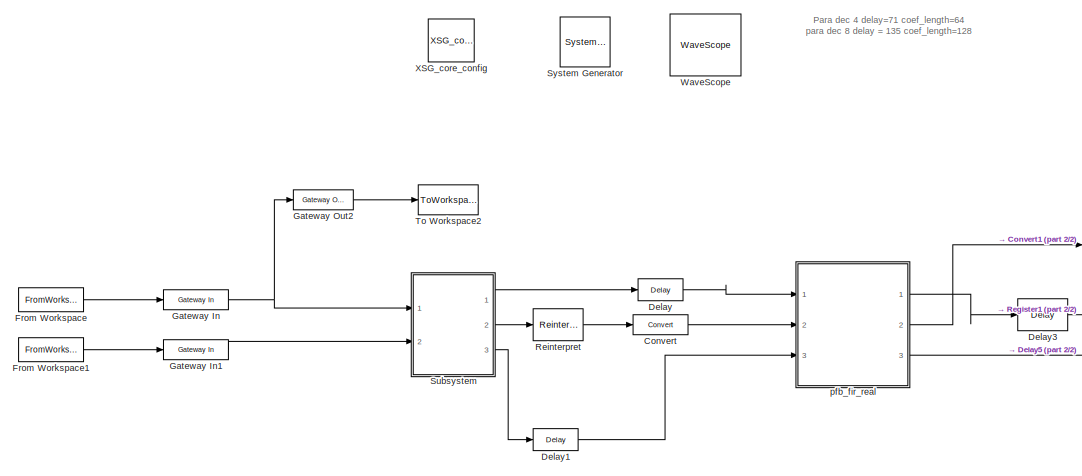
[diagram: root canvas - part 1/2, left side, full height]
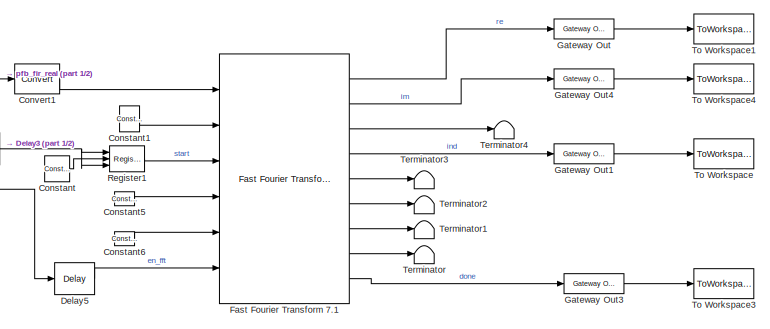
[diagram: root canvas - part 2/2, bottom right region]
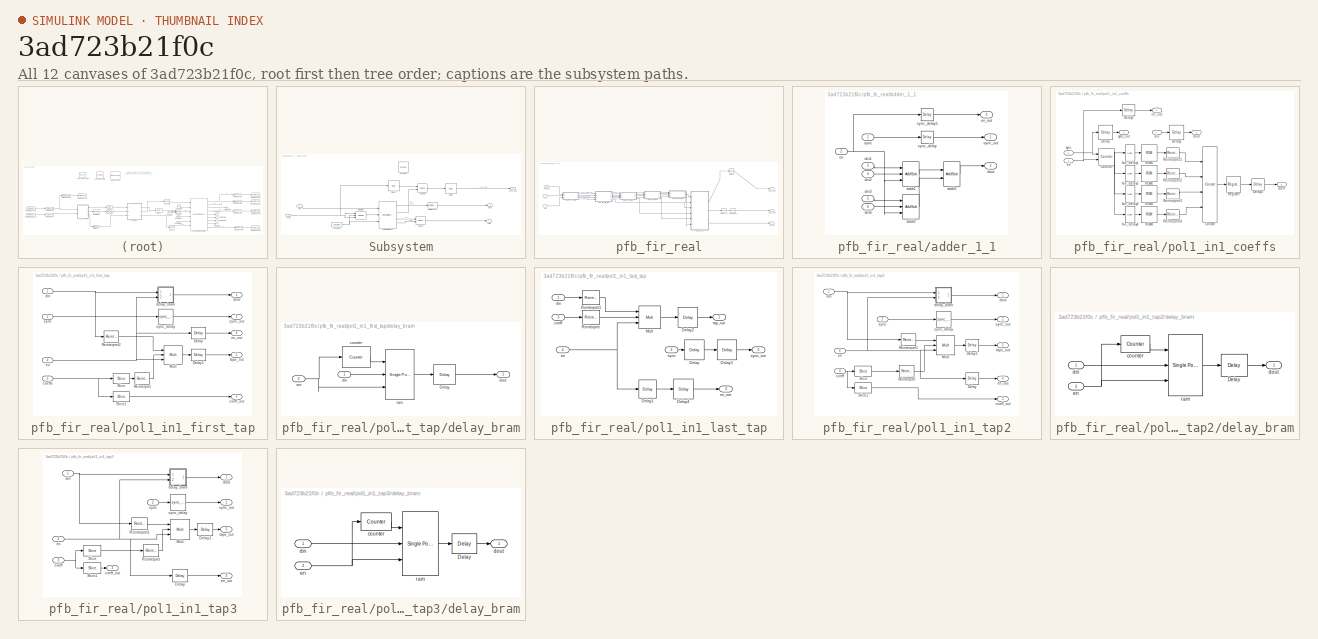
[diagram: thumbnail index - all 12 canvases of the model, root first then tree order]
MODEL slx_3ad723b21f0c
KIND model
BLOCK [Reference]  System Generator  REF=xbsIndex_r4/ System Generator
  AttributesFormatString = System\nGenerator
  Impl_file = ISE Defaults
  Ports = []
  SourceBlock = xbsIndex_r4/ System Generator
  SourceType = Xilinx System Generator Block
  Synth_file = XST Defaults
  Tag = genX
  UserDataPersistent = on
  block_type = sysgen
  clock_wrapper = Clock Enables
  core_generation = According to Block Masks
  dbl_ovrd = According to Block Masks
  dcm_input_clock_period = 10
  deprecated_control = off
  directory = ./netlist
  eval_field = 0
  has_advanced_control = 0
  incr_netlist = off
  infoedit = System Generator
  package = fbg676
  part = xc7k325t
  proj_type = Project Navigator
  run_coregen = off
  sg_icon_stat = 50,50,0,0,token,white,0,58c5b5770fe5f7c311f53dbc6e73f0f6,right,,[ ],[ ]
  sg_mask_display = fprintf('','COMMENT: begin icon graphics');\npatch([0 50 50 0 0 ],[0 0 50 50 0 ],[1 1 1 ]);\npatch([1.6375 16.81 27.31 37.81 48.31 27.31 12.1375 1.6375 ],[36.655 36.655 47.155 36.655 47.155 47.155 47.155 36.655 ],[0.933333 0.203922 0.141176 ]);\npatch([12.1375 27.31 16.81 1.6375 12.1375 ],[26.155 26.155 36.655 36.655 26.155 ],[0.698039 0.0313725 0.219608 ]);\npatch([1.6375 16.81 27.31 12.1375 1.6375 ]...<+327ch>
  sggui_pos = -1,-1,-1,-1
  simulink_period = 1
  speed = -3
  synthesis_tool = XST
  sysclk_period = 10
  testbench = off
  trim_vbits = Everywhere in SubSystem
  xilinxfamily = Kintex7
BLOCK [Reference] Constant  REF=xbsIndex_r4/Constant
  Ports = [0, 1]
  SourceBlock = xbsIndex_r4/Constant
  SourceType = Xilinx Constant Block Block
  arith_type = Boolean
  bin_pt = 14
  block_type = constant
  carry = CIN
  const = 0
  dbl_ovrd = off
  dsp48_infoedit = The use of this block for DSP48 instructions is deprecated.  Please use the Opmode block.
  equ = P=C
  exp_width = 8
  explicit_period = on
  frac_width = 24
  gui_display_data_type = Boolean
  has_advanced_control = 0
  inp1 = P
  inp2 = PCIN>>17
  n_bits = 16
  opr = +
  opselect = C
  period = 1
  preci_type = Single
  sg_icon_stat = 25,26,0,1,white,blue,0,bf4ddd8b,right,,[ ],[ ]
  sg_mask_display = fprintf('','COMMENT: begin icon graphics');\npatch([0 25 25 0 0 ],[0 0 26 26 0 ],[0.77 0.82 0.91 ]);\nplot([0 25 25 0 0 ],[0 0 26 26 0 ]);\npatch([5.325 9.66 12.66 15.66 18.66 12.66 8.325 5.325 ],[16.33 16.33 19.33 16.33 19.33 19.33 19.33 16.33 ],[1 1 1 ]);\npatch([8.325 12.66 9.66 5.325 8.325 ],[13.33 13.33 16.33 16.33 13.33 ],[0.931 0.946 0.973 ]);\npatch([5.325 9.66 12.66 8.325 5.325 ],[10.33 10.33 ...<+307ch>
  sggui_pos = 77,39,344,463
BLOCK [Reference] Constant1  REF=xbsIndex_r4/Constant
  Ports = [0, 1]
  SourceBlock = xbsIndex_r4/Constant
  SourceType = Xilinx Constant Block Block
  arith_type = Signed (2's comp)
  bin_pt = 33
  block_type = constant
  carry = CIN
  const = 0
  dbl_ovrd = off
  dsp48_infoedit = The use of this block for DSP48 instructions is deprecated.  Please use the Opmode block.
  equ = P=C
  exp_width = 8
  explicit_period = on
  frac_width = 24
  gui_display_data_type = Fixed-point
  has_advanced_control = 0
  inp1 = P
  inp2 = PCIN>>17
  n_bits = 34
  opr = +
  opselect = C
  period = 1
  preci_type = Single
  sg_icon_stat = 20,26,0,1,white,blue,0,bf4ddd8b,right,,[ ],[ ]
  sg_mask_display = fprintf('','COMMENT: begin icon graphics');\npatch([0 20 20 0 0 ],[0 0 26 26 0 ],[0.77 0.82 0.91 ]);\nplot([0 20 20 0 0 ],[0 0 26 26 0 ]);\npatch([5.55 8.44 10.44 12.44 14.44 10.44 7.55 5.55 ],[15.22 15.22 17.22 15.22 17.22 17.22 17.22 15.22 ],[1 1 1 ]);\npatch([7.55 10.44 8.44 5.55 7.55 ],[13.22 13.22 15.22 15.22 13.22 ],[0.931 0.946 0.973 ]);\npatch([5.55 8.44 10.44 7.55 5.55 ],[11.22 11.22 13.22 13....<+295ch>
  sggui_pos = 53,14,337,463
BLOCK [Reference] Constant5  REF=xbsIndex_r4/Constant
  Ports = [0, 1]
  SourceBlock = xbsIndex_r4/Constant
  SourceType = Xilinx Constant Block Block
  arith_type = Boolean
  bin_pt = 14
  block_type = constant
  carry = CIN
  const = 1
  dbl_ovrd = off
  dsp48_infoedit = The use of this block for DSP48 instructions is deprecated.  Please use the Opmode block.
  equ = P=C
  exp_width = 8
  explicit_period = on
  frac_width = 24
  gui_display_data_type = Boolean
  has_advanced_control = 0
  inp1 = P
  inp2 = PCIN>>17
  n_bits = 16
  opr = +
  opselect = C
  period = 1
  preci_type = Single
  sg_icon_stat = 20,14,0,1,white,blue,0,1c72b5be,right,,[ ],[ ]
  sg_mask_display = fprintf('','COMMENT: begin icon graphics');\npatch([0 20 20 0 0 ],[0 0 14 14 0 ],[0.77 0.82 0.91 ]);\nplot([0 20 20 0 0 ],[0 0 14 14 0 ]);\npatch([5.55 8.44 10.44 12.44 14.44 10.44 7.55 5.55 ],[9.22 9.22 11.22 9.22 11.22 11.22 11.22 9.22 ],[1 1 1 ]);\npatch([7.55 10.44 8.44 5.55 7.55 ],[7.22 7.22 9.22 9.22 7.22 ],[0.931 0.946 0.973 ]);\npatch([5.55 8.44 10.44 7.55 5.55 ],[5.22 5.22 7.22 7.22 5.22 ],[1 ...<+278ch>
  sggui_pos = 57,156,344,463
BLOCK [Reference] Constant6  REF=xbsIndex_r4/Constant
  Ports = [0, 1]
  SourceBlock = xbsIndex_r4/Constant
  SourceType = Xilinx Constant Block Block
  arith_type = Boolean
  bin_pt = 14
  block_type = constant
  carry = CIN
  const = 0
  dbl_ovrd = off
  dsp48_infoedit = The use of this block for DSP48 instructions is deprecated.  Please use the Opmode block.
  equ = P=C
  exp_width = 8
  explicit_period = on
  frac_width = 24
  gui_display_data_type = Boolean
  has_advanced_control = 0
  inp1 = P
  inp2 = PCIN>>17
  n_bits = 16
  opr = +
  opselect = C
  period = 1
  preci_type = Single
  sg_icon_stat = 20,14,0,1,white,blue,0,bf4ddd8b,right,,[ ],[ ]
  sg_mask_display = fprintf('','COMMENT: begin icon graphics');\npatch([0 20 20 0 0 ],[0 0 14 14 0 ],[0.77 0.82 0.91 ]);\nplot([0 20 20 0 0 ],[0 0 14 14 0 ]);\npatch([5.55 8.44 10.44 12.44 14.44 10.44 7.55 5.55 ],[9.22 9.22 11.22 9.22 11.22 11.22 11.22 9.22 ],[1 1 1 ]);\npatch([7.55 10.44 8.44 5.55 7.55 ],[7.22 7.22 9.22 9.22 7.22 ],[0.931 0.946 0.973 ]);\npatch([5.55 8.44 10.44 7.55 5.55 ],[5.22 5.22 7.22 7.22 5.22 ],[1 ...<+278ch>
  sggui_pos = 53,146,344,463
BLOCK [Reference] Convert  REF=xbsIndex_r4/Convert
  Ports = [1, 1]
  SourceBlock = xbsIndex_r4/Convert
  SourceType = Xilinx Type Converter Block
  arith_type = Unsigned
  bin_pt = 31
  block_type = convert
  block_version = 11.4
  dbl_ovrd = off
  en = off
  exp_bits = 8
  float_type = Single
  fraction_bits = 24
  gui_display_data_type = Fixed-point
  has_advanced_control = 0
  infoedit = Hardware notes: rounding and saturating require hardware resources; truncating and wrapping do not.
  latency = 2
  n_bits = 32
  overflow = Wrap
  pipeline = off
  quantization = Truncate
  sg_icon_stat = 55,20,1,1,white,blue,0,b61d041b,right,,[ ],[ ]
  sg_mask_display = fprintf('','COMMENT: begin icon graphics');\npatch([0 55 55 0 0 ],[0 0 20 20 0 ],[0.77 0.82 0.91 ]);\nplot([0 55 55 0 0 ],[0 0 20 20 0 ]);\npatch([22.55 25.44 27.44 29.44 31.44 27.44 24.55 22.55 ],[12.22 12.22 14.22 12.22 14.22 14.22 14.22 12.22 ],[1 1 1 ]);\npatch([24.55 27.44 25.44 22.55 24.55 ],[10.22 10.22 12.22 12.22 10.22 ],[0.931 0.946 0.973 ]);\npatch([22.55 25.44 27.44 24.55 22.55 ],[8.22 8.22...<+393ch>
  sggui_pos = 53,14,636,624
  xl_area = [0,0,0,0,0,0,0]
  xl_use_area = off
BLOCK [Reference] Convert1  REF=xbsIndex_r4/Convert
  Ports = [1, 1]
  SourceBlock = xbsIndex_r4/Convert
  SourceType = Xilinx Type Converter Block
  arith_type = Signed  (2's comp)
  bin_pt = 33
  block_type = convert
  dbl_ovrd = off
  en = off
  exp_bits = 8
  float_type = Single
  fraction_bits = 24
  gui_display_data_type = Fixed-point
  has_advanced_control = 0
  infoedit = Hardware notes: rounding and saturating require hardware resources; truncating and wrapping do not.
  latency = 2
  n_bits = 34
  overflow = Wrap
  pipeline = off
  quantization = Truncate
  sg_icon_stat = 45,30,1,1,white,blue,0,b61d041b,right,,[ ],[ ]
  sg_mask_display = fprintf('','COMMENT: begin icon graphics');\npatch([0 45 45 0 0 ],[0 0 30 30 0 ],[0.77 0.82 0.91 ]);\nplot([0 45 45 0 0 ],[0 0 30 30 0 ]);\npatch([13.1 18.88 22.88 26.88 30.88 22.88 17.1 13.1 ],[19.44 19.44 23.44 19.44 23.44 23.44 23.44 19.44 ],[1 1 1 ]);\npatch([17.1 22.88 18.88 13.1 17.1 ],[15.44 15.44 19.44 19.44 15.44 ],[0.931 0.946 0.973 ]);\npatch([13.1 18.88 22.88 17.1 13.1 ],[11.44 11.44 15.44 ...<+387ch>
  sggui_pos = 63,26,526,624
  xl_area = [0,0,0,0,0,0,0]
  xl_use_area = off
BLOCK [Reference] Delay  REF=xbsIndex_r4/Delay
  Ports = [1, 1]
  SourceBlock = xbsIndex_r4/Delay
  SourceType = Xilinx Delay Block
  block_type = delay
  dbl_ovrd = off
  en = off
  has_advanced_control = 0
  infoedit = Hardware notes: A delay line is a chain, each link of which is an SRL16 followed by a flip-flop.
  infoeditControl = Selection of Reset will increase slice count due to use of real FFs and instead of SRLs
  latency = 2
  reg_retiming = off
  rst = off
  sg_icon_stat = 45,22,1,1,white,blue,0,85ce9542,right,,[ ],[ ]
  sg_mask_display = fprintf('','COMMENT: begin icon graphics');\npatch([0 45 45 0 0 ],[0 0 22 22 0 ],[0.77 0.82 0.91 ]);\nplot([0 45 45 0 0 ],[0 0 22 22 0 ]);\npatch([15.325 19.66 22.66 25.66 28.66 22.66 18.325 15.325 ],[14.33 14.33 17.33 14.33 17.33 17.33 17.33 14.33 ],[1 1 1 ]);\npatch([18.325 22.66 19.66 15.325 18.325 ],[11.33 11.33 14.33 14.33 11.33 ],[0.931 0.946 0.973 ]);\npatch([15.325 19.66 22.66 18.325 15.325 ],[...<+322ch>
  sggui_pos = 73,34,416,361
  xl_area = [0,0,0,0,0,0,0]
  xl_use_area = off
BLOCK [Reference] Delay1  REF=xbsIndex_r4/Delay
  Ports = [1, 1]
  SourceBlock = xbsIndex_r4/Delay
  SourceType = Xilinx Delay Block
  block_type = delay
  dbl_ovrd = off
  en = off
  has_advanced_control = 0
  infoedit = Hardware notes: A delay line is a chain, each link of which is an SRL16 followed by a flip-flop.
  infoeditControl = Selection of Reset will increase slice count due to use of real FFs and instead of SRLs
  latency = 2
  reg_retiming = off
  rst = off
  sg_icon_stat = 45,22,1,1,white,blue,0,85ce9542,right,,[ ],[ ]
  sg_mask_display = fprintf('','COMMENT: begin icon graphics');\npatch([0 45 45 0 0 ],[0 0 22 22 0 ],[0.77 0.82 0.91 ]);\nplot([0 45 45 0 0 ],[0 0 22 22 0 ]);\npatch([15.325 19.66 22.66 25.66 28.66 22.66 18.325 15.325 ],[14.33 14.33 17.33 14.33 17.33 17.33 17.33 14.33 ],[1 1 1 ]);\npatch([18.325 22.66 19.66 15.325 18.325 ],[11.33 11.33 14.33 14.33 11.33 ],[0.931 0.946 0.973 ]);\npatch([15.325 19.66 22.66 18.325 15.325 ],[...<+322ch>
  sggui_pos = 73,34,416,361
  xl_area = [0,0,0,0,0,0,0]
  xl_use_area = off
BLOCK [Reference] Delay3  REF=xbsIndex_r4/Delay
  Ports = [1, 1]
  SourceBlock = xbsIndex_r4/Delay
  SourceType = Xilinx Delay Block
  block_type = delay
  dbl_ovrd = off
  en = off
  has_advanced_control = 0
  infoedit = Hardware notes: A delay line is a chain, each link of which is an SRL16 followed by a flip-flop.
  infoeditControl = Selection of Reset will increase slice count due to use of real FFs and instead of SRLs
  latency = 6
  reg_retiming = off
  rst = off
  sg_icon_stat = 50,32,1,1,white,blue,0,aa5bc30d,right,,[ ],[ ]
  sg_mask_display = fprintf('','COMMENT: begin icon graphics');\npatch([0 50 50 0 0 ],[0 0 32 32 0 ],[0.77 0.82 0.91 ]);\nplot([0 50 50 0 0 ],[0 0 32 32 0 ]);\npatch([16.1 21.88 25.88 29.88 33.88 25.88 20.1 16.1 ],[20.44 20.44 24.44 20.44 24.44 24.44 24.44 20.44 ],[1 1 1 ]);\npatch([20.1 25.88 21.88 16.1 20.1 ],[16.44 16.44 20.44 20.44 16.44 ],[0.931 0.946 0.973 ]);\npatch([16.1 21.88 25.88 20.1 16.1 ],[12.44 12.44 16.44 ...<+304ch>
  sggui_pos = 53,14,420,361
  xl_area = [0,0,0,0,0,0,0]
  xl_use_area = off
BLOCK [Reference] Delay5  REF=xbsIndex_r4/Delay
  Ports = [1, 1]
  SourceBlock = xbsIndex_r4/Delay
  SourceType = Xilinx Delay Block
  block_type = delay
  dbl_ovrd = off
  en = off
  has_advanced_control = 0
  infoedit = Hardware notes: A delay line is a chain, each link of which is an SRL16 followed by a flip-flop.
  infoeditControl = Selection of Reset will increase slice count due to use of real FFs and instead of SRLs
  latency = 2
  reg_retiming = off
  rst = off
  sg_icon_stat = 40,32,1,1,white,blue,0,85ce9542,right,,[ ],[ ]
  sg_mask_display = fprintf('','COMMENT: begin icon graphics');\npatch([0 40 40 0 0 ],[0 0 32 32 0 ],[0.77 0.82 0.91 ]);\nplot([0 40 40 0 0 ],[0 0 32 32 0 ]);\npatch([11.1 16.88 20.88 24.88 28.88 20.88 15.1 11.1 ],[20.44 20.44 24.44 20.44 24.44 24.44 24.44 20.44 ],[1 1 1 ]);\npatch([15.1 20.88 16.88 11.1 15.1 ],[16.44 16.44 20.44 20.44 16.44 ],[0.931 0.946 0.973 ]);\npatch([11.1 16.88 20.88 15.1 11.1 ],[12.44 12.44 16.44 ...<+304ch>  <repeated x5 — deduplicated; at blocks: Delay5, Delay, Delay1>
  sggui_pos = 73,34,416,361
  xl_area = [0,0,0,0,0,0,0]
  xl_use_area = off
BLOCK [Reference] Fast Fourier Transform 7.1   REF=xbsIndex_r4/Fast Fourier Transform 7.1 
  Ports = [6, 9]
  SourceBlock = xbsIndex_r4/Fast Fourier Transform 7.1
  SourceType = Xilinx Fast Fourier Transform 7.1 Block
  block_type = xfft_v7_1
  butterfly_type = use_luts
  ce = on
  channels = 1
  complex_mult_type = use_mults_resources
  cyclic_prefix_insertion = off
  dsptool_ready = true
  has_advanced_control = 0
  implementation_options = pipelined_streaming_io
  input_data_offset = no_offset
  input_ordering = natural_order
  input_width = 16
  ip_name = Fast Fourier Transform
  ip_version = 7.1
  ipcore_fpga_part = xlipgetpartsetting(gcb, {'virtex4', 'xc4vsx35', '-10', 'ff668'})
  memory_options_data = block_ram
  memory_options_hybrid = off
  memory_options_phase_factors = block_ram
  memory_options_reorder = block_ram
  number_of_stages_using_block_ram_for_data_and_phase_factors = 1
  output_ordering = natural_order
  ovflo = off
  phase_factor_width = 16
  port_translation_map = { 'ce' => 'en', 'sclr' => 'rst' }
  rounding_modes = convergent_rounding
  run_time_configurable_transform_length = off
  scaling_options = unscaled
  sclr = off
  sg_icon_stat = 130,250,6,9,white,blue,0,a859da34,right,,[ ],[ ]
  sg_mask_display = fprintf('','COMMENT: begin icon graphics');\npatch([0 130 130 0 0 ],[0 0 250 250 0 ],[0.77 0.82 0.91 ]);\nplot([0 130 130 0 0 ],[0 0 250 250 0 ]);\npatch([24.95 50.96 68.96 86.96 104.96 68.96 42.95 24.95 ],[144.98 144.98 162.98 144.98 162.98 162.98 162.98 144.98 ],[1 1 1 ]);\npatch([42.95 68.96 50.96 24.95 42.95 ],[126.98 126.98 144.98 144.98 126.98 ],[0.931 0.946 0.973 ]);\npatch([24.95 50.96 68.96 42...<+1005ch>
  sggui_pos = 53,14,875,626
  simulation_model = fftv71_CModel:fftv71_cmodel
  simulation_type = external_xfix
  target_clock_frequency = 250
  target_data_throughput = 50
  transform_length = 64
  wrapper_available = true
  xl_area = [0,0,0,0,0,0,0]
  xl_use_area = off
BLOCK [FromWorkspace] From Workspace
  OutputAfterFinalValue = Holding final value
  SampleTime = 0
  VariableName = data_in
  ZeroCross = on
BLOCK [FromWorkspace] From Workspace1
  OutputAfterFinalValue = Holding final value
  SampleTime = 0
  VariableName = sync
  ZeroCross = on
BLOCK [Reference] Gateway In  REF=xbsIndex_r4/Gateway In
  ADCChannel = '1'
  LOCs = {}
  Ports = [1, 1]
  SourceBlock = xbsIndex_r4/Gateway In
  SourceType = Xilinx Gateway In Block
  UseAsADC = off
  arith_type = Signed  (2's comp)
  bin_pt = 19
  block_type = gatewayin
  dbl_ovrd = off
  exp_width = 8
  frac_width = 24
  gui_display_data_type = Fixed-point
  has_advanced_control = 0
  hdl_port = on
  infoedit = Gateway in block.  Converts inputs of type Simulink integer, single, double and fixed-point to  Xilinx fixed-point or floating-point data type.<br><br>Hardware notes:  In hardware these blocks become top level input ports.
  inherit_from_input = off
  locs_specified = off
  n_bits = 20
  overflow = Saturate
  period = 1
  preci_type = Single
  quantization = Round  (unbiased: +/- Inf)
  sg_icon_stat = 65,20,1,1,white,yellow,1,00d3666e,right,,[ ],[ ]
  sg_mask_display = fprintf('','COMMENT: begin icon graphics');\npatch([0 65 65 0 0 ],[0 0 20 20 0 ],[0.95 0.93 0.65 ]);\nplot([0 65 65 0 0 ],[0 0 20 20 0 ]);\npatch([27.55 30.44 32.44 34.44 36.44 32.44 29.55 27.55 ],[12.22 12.22 14.22 12.22 14.22 14.22 14.22 12.22 ],[1 1 1 ]);\npatch([29.55 32.44 30.44 27.55 29.55 ],[10.22 10.22 12.22 12.22 10.22 ],[0.985 0.979 0.895 ]);\npatch([27.55 30.44 32.44 29.55 27.55 ],[8.22 8.22...<+383ch>
  sggui_pos = 53,14,416,656
  timing_constraint = None
  xl_area = [0,0,0,0,0,0,0]
  xl_use_area = off
BLOCK [Reference] Gateway In1  REF=xbsIndex_r4/Gateway In
  ADCChannel = '1'
  LOCs = {}
  Ports = [1, 1]
  SourceBlock = xbsIndex_r4/Gateway In
  SourceType = Xilinx Gateway In Block
  UseAsADC = off
  arith_type = Boolean
  bin_pt = 14
  block_type = gatewayin
  dbl_ovrd = off
  exp_width = 8
  frac_width = 24
  gui_display_data_type = Boolean
  has_advanced_control = 0
  hdl_port = on
  infoedit = Gateway in block.  Converts inputs of type Simulink integer, single, double and fixed-point to  Xilinx fixed-point or floating-point data type.<br><br>Hardware notes:  In hardware these blocks become top level input ports.
  inherit_from_input = off
  locs_specified = off
  n_bits = 16
  overflow = Saturate
  period = 1
  preci_type = Single
  quantization = Round  (unbiased: +/- Inf)
  sg_icon_stat = 65,20,1,1,white,yellow,1,00d3666e,right,,[ ],[ ]
  sg_mask_display = fprintf('','COMMENT: begin icon graphics');\npatch([0 65 65 0 0 ],[0 0 20 20 0 ],[0.95 0.93 0.65 ]);\nplot([0 65 65 0 0 ],[0 0 20 20 0 ]);\npatch([27.55 30.44 32.44 34.44 36.44 32.44 29.55 27.55 ],[12.22 12.22 14.22 12.22 14.22 14.22 14.22 12.22 ],[1 1 1 ]);\npatch([29.55 32.44 30.44 27.55 29.55 ],[10.22 10.22 12.22 12.22 10.22 ],[0.985 0.979 0.895 ]);\npatch([27.55 30.44 32.44 29.55 27.55 ],[8.22 8.22...<+383ch>
  sggui_pos = 73,34,416,656
  timing_constraint = None
  xl_area = [0,0,0,0,0,0,0]
  xl_use_area = off
BLOCK [Reference] Gateway Out  REF=xbsIndex_r4/Gateway Out
  DACChannel = '1'
  LOCs = {}
  Ports = [1, 1]
  SourceBlock = xbsIndex_r4/Gateway Out
  SourceType = Xilinx Gateway Out Block
  UseAsDAC = off
  block_type = gatewayout
  has_advanced_control = 0
  hdl_port = on
  infoedit = Gateway out block.  Converts Xilinx fixed-point or floating-point type inputs into ouputs of type Simulink integer, single, double, or fixed-point.<br><br>Hardware notes:  In hardware these blocks become top level output ports or are discarded, depending on how they are configured.  <repeated x5 — deduplicated; at blocks: Gateway Out, Gateway Out1, Gateway Out2, Gateway Out3, Gateway Out4>
  inherit_from_input = on
  locs_specified = off
  sg_icon_stat = 60,20,1,1,white,yellow,1,cc31b7ac,right,,[ ],[ ]
  sg_mask_display = fprintf('','COMMENT: begin icon graphics');\npatch([0 60 60 0 0 ],[0 0 20 20 0 ],[0.95 0.93 0.65 ]);\nplot([0 60 60 0 0 ],[0 0 20 20 0 ]);\npatch([25.55 28.44 30.44 32.44 34.44 30.44 27.55 25.55 ],[12.22 12.22 14.22 12.22 14.22 14.22 14.22 12.22 ],[1 1 1 ]);\npatch([27.55 30.44 28.44 25.55 27.55 ],[10.22 10.22 12.22 12.22 10.22 ],[0.985 0.979 0.895 ]);\npatch([25.55 28.44 30.44 27.55 25.55 ],[8.22 8.22...<+384ch>  <repeated x5 — deduplicated; at blocks: Gateway Out, Gateway Out1, Gateway Out2, Gateway Out3, Gateway Out4>
  sggui_pos = 73,34,400,629
  timing_constraint = None
  xl_area = [0,0,0,0,0,0,0]
  xl_use_area = off
BLOCK [Reference] Gateway Out1  REF=xbsIndex_r4/Gateway Out
  DACChannel = '1'
  LOCs = {}
  Ports = [1, 1]
  SourceBlock = xbsIndex_r4/Gateway Out
  SourceType = Xilinx Gateway Out Block
  UseAsDAC = off
  block_type = gatewayout
  has_advanced_control = 0
  hdl_port = on
  inherit_from_input = on
  locs_specified = off
  sg_icon_stat = 60,20,1,1,white,yellow,1,cc31b7ac,right,,[ ],[ ]
  sggui_pos = 63,24,400,629
  timing_constraint = None
  xl_area = [0,0,0,0,0,0,0]
  xl_use_area = off
BLOCK [Reference] Gateway Out2  REF=xbsIndex_r4/Gateway Out
  DACChannel = '1'
  LOCs = {}
  Ports = [1, 1]
  SourceBlock = xbsIndex_r4/Gateway Out
  SourceType = Xilinx Gateway Out Block
  UseAsDAC = off
  block_type = gatewayout
  has_advanced_control = 0
  hdl_port = on
  inherit_from_input = on
  locs_specified = off
  sg_icon_stat = 60,20,1,1,white,yellow,1,cc31b7ac,right,,[ ],[ ]
  sggui_pos = 73,34,400,629
  timing_constraint = None
  xl_area = [0,0,0,0,0,0,0]
  xl_use_area = off
BLOCK [Reference] Gateway Out3  REF=xbsIndex_r4/Gateway Out
  DACChannel = '1'
  LOCs = {}
  Ports = [1, 1]
  SourceBlock = xbsIndex_r4/Gateway Out
  SourceType = Xilinx Gateway Out Block
  UseAsDAC = off
  block_type = gatewayout
  has_advanced_control = 0
  hdl_port = on
  inherit_from_input = on
  locs_specified = off
  sg_icon_stat = 60,20,1,1,white,yellow,1,cc31b7ac,right,,[ ],[ ]
  sggui_pos = 63,24,400,629
  timing_constraint = None
  xl_area = [0,0,0,0,0,0,0]
  xl_use_area = off
BLOCK [Reference] Gateway Out4  REF=xbsIndex_r4/Gateway Out
  DACChannel = '1'
  LOCs = {}
  Ports = [1, 1]
  SourceBlock = xbsIndex_r4/Gateway Out
  SourceType = Xilinx Gateway Out Block
  UseAsDAC = off
  block_type = gatewayout
  has_advanced_control = 0
  hdl_port = on
  inherit_from_input = on
  locs_specified = off
  sg_icon_stat = 60,20,1,1,white,yellow,1,cc31b7ac,right,,[ ],[ ]
  sggui_pos = 73,34,400,629
  timing_constraint = None
  xl_area = [0,0,0,0,0,0,0]
  xl_use_area = off
BLOCK [Reference] Register1  REF=xbsIndex_r4/Register
  Ports = [3, 1]
  SourceBlock = xbsIndex_r4/Register
  SourceType = Xilinx Register Block
  block_type = register
  dbl_ovrd = off
  en = on
  has_advanced_control = 0
  init = 0
  rst = on
  sg_icon_stat = 35,26,3,1,white,blue,0,30546de1,right,,[ ],[ ]
  sg_mask_display = fprintf('','COMMENT: begin icon graphics');\npatch([0 35 35 0 0 ],[0 0 26 26 0 ],[0.77 0.82 0.91 ]);\nplot([0 35 35 0 0 ],[0 0 26 26 0 ]);\npatch([10.325 14.66 17.66 20.66 23.66 17.66 13.325 10.325 ],[16.33 16.33 19.33 16.33 19.33 19.33 19.33 16.33 ],[1 1 1 ]);\npatch([13.325 17.66 14.66 10.325 13.325 ],[13.33 13.33 16.33 16.33 13.33 ],[0.931 0.946 0.973 ]);\npatch([10.325 14.66 17.66 13.325 10.325 ],[...<+498ch>
  sggui_pos = 73,34,416,203
  xl_area = [0,0,0,0,0,0,0]
  xl_use_area = off
BLOCK [Reference] Reinterpret  REF=xbsIndex_r4/Reinterpret
  Ports = [1, 1]
  SourceBlock = xbsIndex_r4/Reinterpret
  SourceType = Xilinx Type Reinterpreter Block
  arith_type = Unsigned
  bin_pt = 41
  block_type = reinterpret
  force_arith_type = off
  force_bin_pt = on
  has_advanced_control = 0
  infoedit = Changes signal type without altering the binary representation.   You can change the signal between signed and unsigned, and relocate the binary point.<br><br>Hardware notes: In hardware this block costs nothing.<br><br>Example:  Suppose the input is 6 bits wide, signed, with 2 fractional bits, and the output is forced to unsigned with 0 fractional bits.  Then an input of -2.0 (1110.00 in binary 2...<+58ch>
  sg_icon_stat = 50,32,1,1,white,blue,0,6b04d0b0,right,,[ ],[ ]
  sg_mask_display = fprintf('','COMMENT: begin icon graphics');\npatch([0 50 50 0 0 ],[0 0 32 32 0 ],[0.77 0.82 0.91 ]);\nplot([0 50 50 0 0 ],[0 0 32 32 0 ]);\npatch([16.1 21.88 25.88 29.88 33.88 25.88 20.1 16.1 ],[20.44 20.44 24.44 20.44 24.44 24.44 24.44 20.44 ],[1 1 1 ]);\npatch([20.1 25.88 21.88 16.1 20.1 ],[16.44 16.44 20.44 20.44 16.44 ],[0.931 0.946 0.973 ]);\npatch([16.1 21.88 25.88 20.1 16.1 ],[12.44 12.44 16.44 ...<+294ch>
  sggui_pos = 803,120,364,363
BLOCK [SubSystem] Subsystem
  FunctionWithSeparateData = off
  MaskHideContents = off
  MinAlgLoopOccurrences = off
  Opaque = off
  Ports = [2, 3]
  PropExecContextOutsideSubsystem = off
  RTWSystemCode = Auto
  RequestExecContextInheritance = off
BLOCK [Reference] Subsystem/Constant1  REF=xbsIndex_r4/Constant
  Ports = [0, 1]
  SourceBlock = xbsIndex_r4/Constant
  SourceType = Xilinx Constant Block Block
  arith_type = Boolean
  bin_pt = 14
  block_type = constant
  carry = CIN
  const = 0
  dbl_ovrd = off
  dsp48_infoedit = The use of this block for DSP48 instructions is deprecated.  Please use the Opmode block.
  equ = P=C
  exp_width = 8
  explicit_period = on
  frac_width = 24
  gui_display_data_type = Boolean
  has_advanced_control = 0
  inp1 = P
  inp2 = PCIN>>17
  n_bits = 16
  opr = +
  opselect = C
  period = 1
  preci_type = Single
  sg_icon_stat = 55,26,0,1,white,blue,0,bf4ddd8b,right,,[ ],[ ]
  sg_mask_display = fprintf('','COMMENT: begin icon graphics');\npatch([0 55 55 0 0 ],[0 0 26 26 0 ],[0.77 0.82 0.91 ]);\nplot([0 55 55 0 0 ],[0 0 26 26 0 ]);\npatch([20.325 24.66 27.66 30.66 33.66 27.66 23.325 20.325 ],[16.33 16.33 19.33 16.33 19.33 19.33 19.33 16.33 ],[1 1 1 ]);\npatch([23.325 27.66 24.66 20.325 23.325 ],[13.33 13.33 16.33 16.33 13.33 ],[0.931 0.946 0.973 ]);\npatch([20.325 24.66 27.66 23.325 20.325 ],[...<+323ch>
  sggui_pos = 63,24,337,463
BLOCK [Reference] Subsystem/Delay  REF=xbsIndex_r4/Delay
  Ports = [1, 1]
  SourceBlock = xbsIndex_r4/Delay
  SourceType = Xilinx Delay Block
  block_type = delay
  dbl_ovrd = off
  en = off
  has_advanced_control = 0
  infoedit = Hardware notes: A delay line is a chain, each link of which is an SRL16 followed by a flip-flop.
  infoeditControl = Selection of Reset will increase slice count due to use of real FFs and instead of SRLs
  latency = 71
  reg_retiming = off
  rst = off
  sg_icon_stat = 60,56,1,1,white,blue,0,1f2a0db0,right,,[ ],[ ]
  sg_mask_display = fprintf('','COMMENT: begin icon graphics');\npatch([0 60 60 0 0 ],[0 0 56 56 0 ],[0.77 0.82 0.91 ]);\nplot([0 60 60 0 0 ],[0 0 56 56 0 ]);\npatch([12.2 23.76 31.76 39.76 47.76 31.76 20.2 12.2 ],[36.88 36.88 44.88 36.88 44.88 44.88 44.88 36.88 ],[1 1 1 ]);\npatch([20.2 31.76 23.76 12.2 20.2 ],[28.88 28.88 36.88 36.88 28.88 ],[0.931 0.946 0.973 ]);\npatch([12.2 23.76 31.76 20.2 12.2 ],[20.88 20.88 28.88 ...<+309ch>
  sggui_pos = 53,14,416,361
  xl_area = [0,0,0,0,0,0,0]
  xl_use_area = off
BLOCK [Reference] Subsystem/Delay1  REF=xbsIndex_r4/Delay
  Ports = [1, 1]
  SourceBlock = xbsIndex_r4/Delay
  SourceType = Xilinx Delay Block
  block_type = delay
  dbl_ovrd = off
  en = off
  has_advanced_control = 0
  infoedit = Hardware notes: A delay line is a chain, each link of which is an SRL16 followed by a flip-flop.
  infoeditControl = Selection of Reset will increase slice count due to use of real FFs and instead of SRLs
  latency = 1
  reg_retiming = off
  rst = off
  sg_icon_stat = 60,56,1,1,white,blue,0,07b98262,right,,[ ],[ ]
  sg_mask_display = fprintf('','COMMENT: begin icon graphics');\npatch([0 60 60 0 0 ],[0 0 56 56 0 ],[0.77 0.82 0.91 ]);\nplot([0 60 60 0 0 ],[0 0 56 56 0 ]);\npatch([12.2 23.76 31.76 39.76 47.76 31.76 20.2 12.2 ],[36.88 36.88 44.88 36.88 44.88 44.88 44.88 36.88 ],[1 1 1 ]);\npatch([20.2 31.76 23.76 12.2 20.2 ],[28.88 28.88 36.88 36.88 28.88 ],[0.931 0.946 0.973 ]);\npatch([12.2 23.76 31.76 20.2 12.2 ],[20.88 20.88 28.88 ...<+308ch>
  sggui_pos = 53,14,416,361
  xl_area = [0,0,0,0,0,0,0]
  xl_use_area = off
BLOCK [Reference] Subsystem/FDATool  REF=xbsIndex_r4/FDATool
  Ports = []
  SourceBlock = xbsIndex_r4/FDATool
  SourceType = Xilinx FDATool Interface Block
  UserDataPersistent = on
  block_type = fdatool
  has_advanced_control = 0
  infoedit = FDATool
  sg_icon_stat = 54,56,-1,-1,blue,white,0,07734,right,,[ ],[ ]
  sg_mask_display = fprintf('','COMMENT: begin icon graphics');\npatch([0 54 54 0 0 ],[0 0 56 56 0 ],[1 1 1 ]);\nplot([0 54 54 0 0 ],[0 0 56 56 0 ]);\npatch([11.425 21.54 28.54 35.54 42.54 28.54 18.425 11.425 ],[35.77 35.77 42.77 35.77 42.77 42.77 42.77 35.77 ],[0.839 0.874 0.937 ]);\npatch([18.425 28.54 21.54 11.425 18.425 ],[28.77 28.77 35.77 35.77 28.77 ],[0.77 0.82 0.91 ]);\npatch([11.425 21.54 28.54 18.425 11.425 ],[...<+308ch>
  sggui_pos = -1,-1,-1,-1
BLOCK [Reference] Subsystem/FIR Compiler 5.0   REF=xbsIndex_r4/FIR Compiler 5.0 
  Ports = [3, 4]
  SourceBlock = xbsIndex_r4/FIR Compiler 5.0
  SourceType = Xilinx FIR Compiler 5.0 Block
  allow_rounding_approximation = off
  bestprecision = on
  block_type = fir_compiler_v5_0
  chan_in_adv = 0
  coefficient_buffer_type = Automatic
  coefficient_fractional_bits = 21
  coefficient_reload = off
  coefficient_sets = 1
  coefficient_sign = Signed
  coefficient_structure = Non_Symmetric
  coefficient_width = 20
  coefficientvector = xlfda_numerator('FDATool')
  columnconfig = '31'
  data_buffer_type = Automatic
  data_fractional_bits = 0
  data_sign = Signed
  data_width = 16
  decimation_rate = 4
  dsptool_ready = true
  filter_architecture = Transpose_Multiply_Accumulate
  filter_selection = 1
  filter_type = Decimation
  gui_behaviour = Sysgen
  hardwareoversamplingrate = 1
  has_advanced_control = 0
  has_ce = off
  has_data_valid = on
  has_nd = on
  has_sclr = on
  input_buffer_type = Automatic
  inter_column_pipe_length = 4
  interpolation_rate = 1
  ip_name = FIR Compiler
  ip_version = 5.0
  ip_wrap_arbitrary_binary_point = true
  ipcore_fpga_part = xlipgetpartsetting(gcb, {'virtex4', 'xc4vsx35', '-10', 'ff668'})
  ipcore_usecache = true
  ipcore_useipmodelcache = true
  ipcore_xco_need_fpga_part = true
  multi_column_support = Disabled
  number_channels = 1
  number_paths = 1
  optimization_goal = Area
  output_buffer_type = Automatic
  output_rounding_mode = Full_Precision
  output_width = 39
  passband_max = 0.5
  passband_min = 0.0
  port_translation_map = { 'ce' => 'en', 'sclr' => 'rst' }
  preference_for_other_storage = Automatic
  quantization = Quantize_Only
  rate_change_type = Integer
  ratespecification = Sample_Period
  registered_output = true
  run_core_at_system_period = true
  sampleperiod = 1
  sg_icon_stat = 95,145,3,4,white,blue,0,5f02c517,right,,[ ],[ ]
  sg_mask_display = fprintf('','COMMENT: begin icon graphics');\npatch([0 95 95 0 0 ],[0 0 145 145 0 ],[0.77 0.82 0.91 ]);\nplot([0 95 95 0 0 ],[0 0 145 145 0 ]);\npatch([18.075 36.86 49.86 62.86 75.86 49.86 31.075 18.075 ],[86.43 86.43 99.43 86.43 99.43 99.43 99.43 86.43 ],[1 1 1 ]);\npatch([31.075 49.86 36.86 18.075 31.075 ],[73.43 73.43 86.43 86.43 73.43 ],[0.931 0.946 0.973 ]);\npatch([18.075 36.86 49.86 31.075 18.075...<+607ch>
  sggui_pos = 53,14,448,600
  stopband_max = 1.0
  stopband_min = 0.5
  structural_sim = false
  usechan_in_adv = off
  wrapper_available = true
  xl_area = [0,0,0,0,0,0,0]
  xl_use_area = off
  zero_pack_factor = 1
BLOCK [Reference] Subsystem/Logical  REF=xbsIndex_r4/Logical
  Ports = [2, 1]
  SourceBlock = xbsIndex_r4/Logical
  SourceType = Xilinx Logical Block Block
  align_bp = on
  arith_type = Unsigned
  bin_pt = 0
  block_type = logical
  dbl_ovrd = off
  en = off
  has_advanced_control = 0
  inputs = 2
  latency = 0
  logical_function = AND
  n_bits = 16
  precision = Full
  sg_icon_stat = 50,47,2,1,white,blue,0,83a4b621,right,,[ ],[ ]
  sg_mask_display = fprintf('','COMMENT: begin icon graphics');\npatch([0 50 50 0 0 ],[0 0 47 47 0 ],[0.77 0.82 0.91 ]);\nplot([0 50 50 0 0 ],[0 0 47 47 0 ]);\npatch([11.65 20.32 26.32 32.32 38.32 26.32 17.65 11.65 ],[29.66 29.66 35.66 29.66 35.66 35.66 35.66 29.66 ],[1 1 1 ]);\npatch([17.65 26.32 20.32 11.65 17.65 ],[23.66 23.66 29.66 29.66 23.66 ],[0.931 0.946 0.973 ]);\npatch([11.65 20.32 26.32 17.65 11.65 ],[17.66 17....<+303ch>
  sggui_pos = -1,-1,-1,-1
  xl_area = [0,0,0,0,0,0,0]
  xl_use_area = off
BLOCK [Reference] Subsystem/Logical1  REF=xbsIndex_r4/Logical
  Ports = [2, 1]
  SourceBlock = xbsIndex_r4/Logical
  SourceType = Xilinx Logical Block Block
  align_bp = on
  arith_type = Unsigned
  bin_pt = 0
  block_type = logical
  dbl_ovrd = off
  en = off
  has_advanced_control = 0
  inputs = 2
  latency = 0
  logical_function = AND
  n_bits = 16
  precision = Full
  sg_icon_stat = 50,47,2,1,white,blue,0,83a4b621,right,,[ ],[ ]
  sg_mask_display = fprintf('','COMMENT: begin icon graphics');\npatch([0 50 50 0 0 ],[0 0 47 47 0 ],[0.77 0.82 0.91 ]);\nplot([0 50 50 0 0 ],[0 0 47 47 0 ]);\npatch([11.65 20.32 26.32 32.32 38.32 26.32 17.65 11.65 ],[29.66 29.66 35.66 29.66 35.66 35.66 35.66 29.66 ],[1 1 1 ]);\npatch([17.65 26.32 20.32 11.65 17.65 ],[23.66 23.66 29.66 29.66 23.66 ],[0.931 0.946 0.973 ]);\npatch([11.65 20.32 26.32 17.65 11.65 ],[17.66 17....<+303ch>
  sggui_pos = -1,-1,-1,-1
  xl_area = [0,0,0,0,0,0,0]
  xl_use_area = off
BLOCK [Reference] Subsystem/Register  REF=xbsIndex_r4/Register
  Ports = [3, 1]
  SourceBlock = xbsIndex_r4/Register
  SourceType = Xilinx Register Block
  block_type = register
  dbl_ovrd = off
  en = on
  has_advanced_control = 0
  init = 0
  rst = on
  sg_icon_stat = 55,42,3,1,white,blue,0,30546de1,right,,[ ],[ ]
  sg_mask_display = fprintf('','COMMENT: begin icon graphics');\npatch([0 55 55 0 0 ],[0 0 42 42 0 ],[0.77 0.82 0.91 ]);\nplot([0 55 55 0 0 ],[0 0 42 42 0 ]);\npatch([13.65 22.32 28.32 34.32 40.32 28.32 19.65 13.65 ],[27.66 27.66 33.66 27.66 33.66 33.66 33.66 27.66 ],[1 1 1 ]);\npatch([19.65 28.32 22.32 13.65 19.65 ],[21.66 21.66 27.66 27.66 21.66 ],[0.931 0.946 0.973 ]);\npatch([13.65 22.32 28.32 19.65 13.65 ],[15.66 15....<+486ch>
  sggui_pos = 73,34,416,203
  xl_area = [0,0,0,0,0,0,0]
  xl_use_area = off
BLOCK [Reference] Subsystem/Reinterpret  REF=xbsIndex_r4/Reinterpret
  Ports = [1, 1]
  SourceBlock = xbsIndex_r4/Reinterpret
  SourceType = Xilinx Type Reinterpreter Block
  arith_type = Unsigned
  bin_pt = 38
  block_type = reinterpret
  force_arith_type = off
  force_bin_pt = on
  has_advanced_control = 0
  infoedit = Changes signal type without altering the binary representation.   You can change the signal between signed and unsigned, and relocate the binary point.<br><br>Hardware notes: In hardware this block costs nothing.<br><br>Example:  Suppose the input is 6 bits wide, signed, with 2 fractional bits, and the output is forced to unsigned with 0 fractional bits.  Then an input of -2.0 (1110.00 in binary 2...<+58ch>
  sg_icon_stat = 50,32,1,1,white,blue,0,6b04d0b0,right,,[ ],[ ]
  sg_mask_display = fprintf('','COMMENT: begin icon graphics');\npatch([0 50 50 0 0 ],[0 0 32 32 0 ],[0.77 0.82 0.91 ]);\nplot([0 50 50 0 0 ],[0 0 32 32 0 ]);\npatch([16.1 21.88 25.88 29.88 33.88 25.88 20.1 16.1 ],[20.44 20.44 24.44 20.44 24.44 24.44 24.44 20.44 ],[1 1 1 ]);\npatch([20.1 25.88 21.88 16.1 20.1 ],[16.44 16.44 20.44 20.44 16.44 ],[0.931 0.946 0.973 ]);\npatch([16.1 21.88 25.88 20.1 16.1 ],[12.44 12.44 16.44 ...<+294ch>
  sggui_pos = 636,62,364,363
BLOCK [Inport] Subsystem/din
  IconDisplay = Port number
BLOCK [Outport] Subsystem/dout
  IconDisplay = Port number
  Port = 2
BLOCK [Inport] Subsystem/sync
  IconDisplay = Port number
  Port = 2
BLOCK [Outport] Subsystem/sync_out
  IconDisplay = Port number
BLOCK [Outport] Subsystem/valid
  IconDisplay = Port number
  Port = 3
BLOCK [Terminator] Terminator
BLOCK [Terminator] Terminator1
BLOCK [Terminator] Terminator2
BLOCK [Terminator] Terminator3
BLOCK [Terminator] Terminator4
BLOCK [ToWorkspace] To Workspace
  MaxDataPoints = inf
  Ports = [1]
  SampleTime = -1
  SaveFormat = Timeseries
  VariableName = fft_ind
BLOCK [ToWorkspace] To Workspace1
  MaxDataPoints = inf
  Ports = [1]
  SampleTime = -1
  SaveFormat = Timeseries
  VariableName = real_data
BLOCK [ToWorkspace] To Workspace2
  MaxDataPoints = inf
  Ports = [1]
  SampleTime = -1
  SaveFormat = Timeseries
  VariableName = dat_in
BLOCK [ToWorkspace] To Workspace3
  MaxDataPoints = inf
  Ports = [1]
  SampleTime = -1
  SaveFormat = Timeseries
  VariableName = done
BLOCK [ToWorkspace] To Workspace4
  MaxDataPoints = inf
  Ports = [1]
  SampleTime = -1
  SaveFormat = Timeseries
  VariableName = img_data
BLOCK [Reference] WaveScope  REF=xbsIndex_r4/WaveScope
  Ports = []
  SourceBlock = xbsIndex_r4/WaveScope
  SourceType = Xilinx WaveScope Block
  UserDataPersistent = on
  block_type = wavescope
  has_advanced_control = 0
  infoedit = WaveScope
  sg_icon_stat = 71,62,-1,-1,blue,white,0,07734,right,,[ ],[ ]
  sg_mask_display = fprintf('','COMMENT: begin icon graphics');\npatch([0 71 71 0 0 ],[0 0 62 62 0 ],[1 1 1 ]);\nplot([0 71 71 0 0 ],[0 0 62 62 0 ]);\npatch([17.2 28.76 36.76 44.76 52.76 36.76 25.2 17.2 ],[39.88 39.88 47.88 39.88 47.88 47.88 47.88 39.88 ],[0.839 0.874 0.937 ]);\npatch([25.2 36.76 28.76 17.2 25.2 ],[31.88 31.88 39.88 39.88 31.88 ],[0.77 0.82 0.91 ]);\npatch([17.2 28.76 36.76 25.2 17.2 ],[23.88 23.88 31.88 ...<+536ch>
  sggui_pos = -1,-1,-1,-1
BLOCK [Reference] XSG_core_config  REF=xps_library/XSG_core_config  (lib defined in mdl_00b5cec29cd0, mdl_02ab6ecaa3d1, +5 more)
  MKDIG_clk_src = sys_clk
  Ports = []
  ROACH2_clk_src = sys_clk
  ROACH_clk_src = sys_clk
  SourceBlock = xps_library/XSG_core_config
  SourceType = xsg core config
  Tag = xps:xsg
  clk_rate = 135
  clk_src = sys_clk
  hw_sys = ROACH2:sx475t
  sample_period = 1
  synthesis_tool = XST
BLOCK [SubSystem] pfb_fir_real
  AncestorBlock = casper_library_pfbs/pfb_fir_real
  AttributesFormatString = taps=4, add_latency=1
  FunctionWithSeparateData = off
  MaskHideContents = off
  MinAlgLoopOccurrences = off
  Opaque = off
  Ports = [3, 3]
  PropExecContextOutsideSubsystem = off
  RTWSystemCode = Auto
  RequestExecContextInheritance = off
  Tag = casper:pfb_fir_real
  UserDataPersistent = on
BLOCK [SubSystem] pfb_fir_real/adder_1_1
  AncestorBlock = casper_library_misc/adder_tree
  AttributesFormatString = latency 2
  FunctionWithSeparateData = off
  MaskHideContents = off
  MinAlgLoopOccurrences = off
  Opaque = off
  Ports = [6, 3]
  PropExecContextOutsideSubsystem = off
  RTWSystemCode = Auto
  RequestExecContextInheritance = off
  UserDataPersistent = on
BLOCK [Reference] pfb_fir_real/adder_1_1/addr1  REF=xbsIndex_r4/AddSub
  Ports = [3, 1]
  SourceBlock = xbsIndex_r4/AddSub
  SourceType = Xilinx Adder/Subtracter Block
  arith_type = Signed  (2's comp)
  bin_pt = 48
  block_type = addsub
  block_version = 11.4
  dbl_ovrd = off
  en = on
  has_advanced_control = 0
  hw_selection = Fabric
  latency = 1
  mode = Addition
  n_bits = 50
  overflow = Wrap
  pipelined = on
  precision = User Defined
  quantization = Truncate
  sg_icon_stat = 40,60,3,1,white,blue,0,96ed0f94,right,,[ ],[ ]
  sg_mask_display = fprintf('','COMMENT: begin icon graphics');\npatch([0 40 40 0 0 ],[0 0 60 60 0 ],[0.77 0.82 0.91 ]);\nplot([0 40 40 0 0 ],[0 0 60 60 0 ]);\npatch([8.875 16.1 21.1 26.1 31.1 21.1 13.875 8.875 ],[35.55 35.55 40.55 35.55 40.55 40.55 40.55 35.55 ],[1 1 1 ]);\npatch([13.875 21.1 16.1 8.875 13.875 ],[30.55 30.55 35.55 35.55 30.55 ],[0.931 0.946 0.973 ]);\npatch([8.875 16.1 21.1 13.875 8.875 ],[25.55 25.55 30...<+568ch>
  sggui_pos = 53,88,419,344
  use_behavioral_HDL = on
  use_carryin = off
  use_carryout = off
  use_rpm = on
  xl_area = [0,0,0,0,0,0,0]
  xl_use_area = off
BLOCK [Reference] pfb_fir_real/adder_1_1/addr2  REF=xbsIndex_r4/AddSub
  Ports = [3, 1]
  SourceBlock = xbsIndex_r4/AddSub
  SourceType = Xilinx Adder/Subtracter Block
  arith_type = Signed  (2's comp)
  bin_pt = 48
  block_type = addsub
  dbl_ovrd = off
  en = on
  has_advanced_control = 0
  hw_selection = Fabric
  latency = 1
  mode = Addition
  n_bits = 50
  overflow = Wrap
  pipelined = on
  precision = User Defined
  quantization = Truncate
  sg_icon_stat = 40,60,3,1,white,blue,0,96ed0f94,right,,[ ],[ ]
  sg_mask_display = fprintf('','COMMENT: begin icon graphics');\npatch([0 40 40 0 0 ],[0 0 60 60 0 ],[0.77 0.82 0.91 ]);\nplot([0 40 40 0 0 ],[0 0 60 60 0 ]);\npatch([8.875 16.1 21.1 26.1 31.1 21.1 13.875 8.875 ],[35.55 35.55 40.55 35.55 40.55 40.55 40.55 35.55 ],[1 1 1 ]);\npatch([13.875 21.1 16.1 8.875 13.875 ],[30.55 30.55 35.55 35.55 30.55 ],[0.931 0.946 0.973 ]);\npatch([8.875 16.1 21.1 13.875 8.875 ],[25.55 25.55 30...<+568ch>
  sggui_pos = 73,34,416,343
  use_behavioral_HDL = on
  use_carryin = off
  use_carryout = off
  use_rpm = on
  xl_area = [0,0,0,0,0,0,0]
  xl_use_area = off
BLOCK [Reference] pfb_fir_real/adder_1_1/addr3  REF=xbsIndex_r4/AddSub
  Ports = [2, 1]
  SourceBlock = xbsIndex_r4/AddSub
  SourceType = Xilinx Adder/Subtracter Block
  arith_type = Signed  (2's comp)
  bin_pt = 48
  block_type = addsub
  dbl_ovrd = off
  en = off
  has_advanced_control = 0
  hw_selection = Fabric
  latency = 1
  mode = Addition
  n_bits = 50
  overflow = Wrap
  pipelined = on
  precision = User Defined
  quantization = Truncate
  sg_icon_stat = 40,60,2,1,white,blue,0,e85d8a90,right,,[ ],[ ]
  sg_mask_display = fprintf('','COMMENT: begin icon graphics');\npatch([0 40 40 0 0 ],[0 0 60 60 0 ],[0.77 0.82 0.91 ]);\nplot([0 40 40 0 0 ],[0 0 60 60 0 ]);\npatch([8.875 16.1 21.1 26.1 31.1 21.1 13.875 8.875 ],[35.55 35.55 40.55 35.55 40.55 40.55 40.55 35.55 ],[1 1 1 ]);\npatch([13.875 21.1 16.1 8.875 13.875 ],[30.55 30.55 35.55 35.55 30.55 ],[0.931 0.946 0.973 ]);\npatch([8.875 16.1 21.1 13.875 8.875 ],[25.55 25.55 30...<+525ch>
  sggui_pos = -1,-1,-1,-1
  use_behavioral_HDL = off
  use_carryin = off
  use_carryout = off
  use_rpm = on
  xl_area = [0,0,0,0,0,0,0]
  xl_use_area = off
BLOCK [Inport] pfb_fir_real/adder_1_1/din1
  IconDisplay = Port number
  Port = 3
BLOCK [Inport] pfb_fir_real/adder_1_1/din2
  IconDisplay = Port number
  Port = 4
BLOCK [Inport] pfb_fir_real/adder_1_1/din3
  IconDisplay = Port number
  Port = 5
BLOCK [Inport] pfb_fir_real/adder_1_1/din4
  IconDisplay = Port number
  Port = 6
BLOCK [Outport] pfb_fir_real/adder_1_1/dout
  IconDisplay = Port number
  Port = 2
BLOCK [Inport] pfb_fir_real/adder_1_1/en
  IconDisplay = Port number
  Port = 2
BLOCK [Outport] pfb_fir_real/adder_1_1/en_out
  IconDisplay = Port number
  Port = 3
BLOCK [Inport] pfb_fir_real/adder_1_1/sync
  IconDisplay = Port number
BLOCK [Reference] pfb_fir_real/adder_1_1/sync_delay  REF=xbsIndex_r4/Delay
  Ports = [1, 1]
  SourceBlock = xbsIndex_r4/Delay
  SourceType = Xilinx Delay Block
  block_type = delay
  block_version = 11.4
  dbl_ovrd = off
  en = off
  has_advanced_control = 0
  infoedit = Hardware notes: A delay line is a chain, each link of which is an SRL16 followed by a flip-flop.
  infoeditControl = Selection of Reset will increase slice count due to use of real FFs and instead of SRLs
  latency = 2
  reg_retiming = on
  rst = off
  sg_icon_stat = 30,30,1,1,white,blue,0,85ce9542,right,,[ ],[ ]
  sg_mask_display = fprintf('','COMMENT: begin icon graphics');\npatch([0 30 30 0 0 ],[0 0 30 30 0 ],[0.77 0.82 0.91 ]);\nplot([0 30 30 0 0 ],[0 0 30 30 0 ]);\npatch([6.1 11.88 15.88 19.88 23.88 15.88 10.1 6.1 ],[19.44 19.44 23.44 19.44 23.44 23.44 23.44 19.44 ],[1 1 1 ]);\npatch([10.1 15.88 11.88 6.1 10.1 ],[15.44 15.44 19.44 19.44 15.44 ],[0.931 0.946 0.973 ]);\npatch([6.1 11.88 15.88 10.1 6.1 ],[11.44 11.44 15.44 15.44...<+298ch>  <repeated x3 — deduplicated; at blocks: sync_delay, sync_delay1, delay1>
  sggui_pos = 53,61,419,361
  xl_area = [0,0,0,0,0,0,0]
  xl_use_area = off
BLOCK [Reference] pfb_fir_real/adder_1_1/sync_delay1  REF=xbsIndex_r4/Delay
  Ports = [1, 1]
  SourceBlock = xbsIndex_r4/Delay
  SourceType = Xilinx Delay Block
  block_type = delay
  block_version = 11.4
  dbl_ovrd = off
  en = off
  has_advanced_control = 0
  infoedit = Hardware notes: A delay line is a chain, each link of which is an SRL16 followed by a flip-flop.
  infoeditControl = Selection of Reset will increase slice count due to use of real FFs and instead of SRLs
  latency = 2
  reg_retiming = on
  rst = off
  sg_icon_stat = 30,30,1,1,white,blue,0,85ce9542,right,,[ ],[ ]
  sggui_pos = 21,71,419,315
  xl_area = [0,0,0,0,0,0,0]
  xl_use_area = off
BLOCK [Outport] pfb_fir_real/adder_1_1/sync_out
  IconDisplay = Port number
BLOCK [Reference] pfb_fir_real/convert_1_1  REF=xbsIndex_r4/Convert
  Ports = [1, 1]
  SourceBlock = xbsIndex_r4/Convert
  SourceType = Xilinx Type Converter Block
  arith_type = Signed  (2's comp)
  bin_pt = 47
  block_type = convert
  dbl_ovrd = off
  en = off
  exp_bits = 8
  float_type = Single
  fraction_bits = 24
  gui_display_data_type = Fixed-point
  has_advanced_control = 0
  infoedit = Hardware notes: rounding and saturating require hardware resources; truncating and wrapping do not.
  latency = 1
  n_bits = 48
  overflow = Wrap
  pipeline = on
  quantization = Round  (unbiased: Even Values)
  sg_icon_stat = 30,26,1,1,white,blue,0,0c6bad53,right,,[ ],[ ]
  sg_mask_display = fprintf('','COMMENT: begin icon graphics');\npatch([0 30 30 0 0 ],[0 0 26 26 0 ],[0.77 0.82 0.91 ]);\nplot([0 30 30 0 0 ],[0 0 26 26 0 ]);\npatch([8.325 12.66 15.66 18.66 21.66 15.66 11.325 8.325 ],[16.33 16.33 19.33 16.33 19.33 19.33 19.33 16.33 ],[1 1 1 ]);\npatch([11.325 15.66 12.66 8.325 11.325 ],[13.33 13.33 16.33 16.33 13.33 ],[0.931 0.946 0.973 ]);\npatch([8.325 12.66 15.66 11.325 8.325 ],[10.33...<+405ch>
  sggui_pos = -1,-1,-1,-1
  xl_area = [0,0,0,0,0,0,0]
  xl_use_area = off
BLOCK [Reference] pfb_fir_real/delay1  REF=xbsIndex_r4/Delay
  Ports = [1, 1]
  SourceBlock = xbsIndex_r4/Delay
  SourceType = Xilinx Delay Block
  block_type = delay
  dbl_ovrd = off
  en = off
  has_advanced_control = 0
  infoedit = Hardware notes: A delay line is a chain, each link of which is an SRL16 followed by a flip-flop.
  infoeditControl = Selection of Reset will increase slice count due to use of real FFs and instead of SRLs
  latency = 1
  reg_retiming = on
  rst = off
  sg_icon_stat = 30,30,1,1,white,blue,0,07b98262,right,,[ ],[ ]
  sggui_pos = -1,-1,-1,-1
  xl_area = [0,0,0,0,0,0,0]
  xl_use_area = off
BLOCK [Outport] pfb_fir_real/en_out
  IconDisplay = Port number
  Port = 3
BLOCK [Inport] pfb_fir_real/pol1_in1
  IconDisplay = Port number
  Port = 2
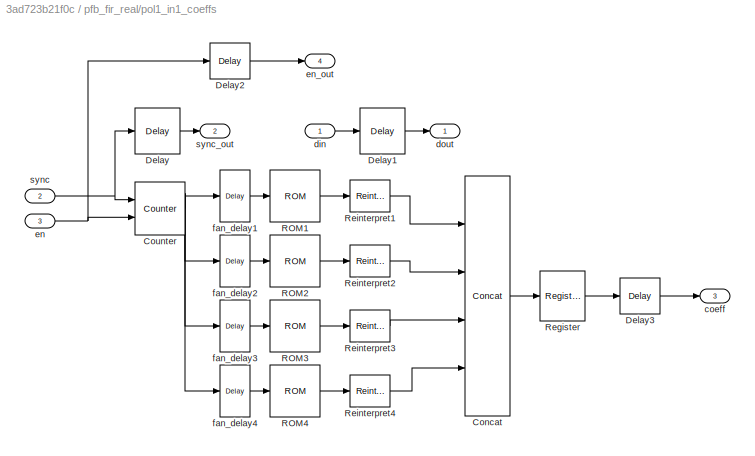
BLOCK [SubSystem] pfb_fir_real/pol1_in1_coeffs
  AncestorBlock = casper_library_pfbs/pfb_coeff_gen
  AttributesFormatString = PFBSize=6, n_inputs=0,\ntaps=4, input=0
  FunctionWithSeparateData = off
  MaskHideContents = off
  MinAlgLoopOccurrences = off
  Opaque = off
  Ports = [3, 4]
  PropExecContextOutsideSubsystem = off
  RTWSystemCode = Auto
  RequestExecContextInheritance = off
  UserDataPersistent = on
BLOCK [Reference] pfb_fir_real/pol1_in1_coeffs/Concat  REF=xbsIndex_r4/Concat
  Ports = [4, 1]
  SourceBlock = xbsIndex_r4/Concat
  SourceType = Xilinx Bus Concatenator Block
  block_type = concat
  block_version = 9.1.01
  dbl_ovrd = off
  has_advanced_control = 0
  infoedit = Concatenates two or more inputs.  Output will be cast to an unsigned value with the binary point at zero.
  num_inputs = 4
  sg_icon_stat = 45,240,4,1,white,blue,0,47d3d416,right,,[ ],[ ]
  sg_mask_display = fprintf('','COMMENT: begin icon graphics');\npatch([0 45 45 0 0 ],[0 0 240 240 0 ],[0.77 0.82 0.91 ]);\nplot([0 45 45 0 0 ],[0 0 240 240 0 ]);\npatch([8.65 17.32 23.32 29.32 35.32 23.32 14.65 8.65 ],[126.66 126.66 132.66 126.66 132.66 132.66 132.66 126.66 ],[1 1 1 ]);\npatch([14.65 23.32 17.32 8.65 14.65 ],[120.66 120.66 126.66 126.66 120.66 ],[0.931 0.946 0.973 ]);\npatch([8.65 17.32 23.32 14.65 8.65 ...<+439ch>
  sggui_pos = -1,-1,-1,-1
BLOCK [Reference] pfb_fir_real/pol1_in1_coeffs/Counter  REF=xbsIndex_r4/Counter
  Ports = [2, 1]
  SourceBlock = xbsIndex_r4/Counter
  SourceType = Xilinx Counter Block
  arith_type = Unsigned
  bin_pt = 0
  block_type = counter
  block_version = 9.1.01
  cnt_by_val = 1
  cnt_to = Inf
  cnt_type = Free Running
  dbl_ovrd = off
  en = on
  explicit_period = on
  has_advanced_control = 0
  implementation = Fabric
  infoedit = Hardware notes: Free running counters are the least expensive in hardware.  A count limited counter is implemented by combining a counter with a comparator.
  load_pin = off
  n_bits = 6
  operation = Up
  period = 1
  rst = on
  sg_icon_stat = 50,53,2,1,white,blue,0,ae3608d6,right,,[ ],[ ]
  sg_mask_display = fprintf('','COMMENT: begin icon graphics');\npatch([0 50 50 0 0 ],[0 0 53 53 0 ],[0.77 0.82 0.91 ]);\nplot([0 50 50 0 0 ],[0 0 53 53 0 ]);\npatch([9.425 19.54 26.54 33.54 40.54 26.54 16.425 9.425 ],[33.77 33.77 40.77 33.77 40.77 40.77 40.77 33.77 ],[1 1 1 ]);\npatch([16.425 26.54 19.54 9.425 16.425 ],[26.77 26.77 33.77 33.77 26.77 ],[0.931 0.946 0.973 ]);\npatch([9.425 19.54 26.54 16.425 9.425 ],[19.77...<+426ch>
  sggui_pos = 53,14,416,716
  start_count = 0
  use_behavioral_HDL = on
  use_rpm = on
  xl_area = [0, 0, 0, 0, 0, 0, 0]
  xl_use_area = off
BLOCK [Reference] pfb_fir_real/pol1_in1_coeffs/Delay  REF=xbsIndex_r4/Delay
  Ports = [1, 1]
  SourceBlock = xbsIndex_r4/Delay
  SourceType = Xilinx Delay Block
  block_type = delay
  block_version = 9.1.01
  dbl_ovrd = off
  en = off
  has_advanced_control = 0
  infoedit = Hardware notes: A delay line is a chain, each link of which is an SRL16 followed by a flip-flop.
  infoeditControl = Selection of Reset will increase slice count due to use of real FFs and instead of SRLs
  latency = (bram_latency+1+fan_latency)*4
  reg_retiming = on
  rst = off
  sg_icon_stat = 45,46,1,1,white,blue,0,f89f7887,right,,[ ],[ ]
  sg_mask_display = fprintf('','COMMENT: begin icon graphics');\npatch([0 45 45 0 0 ],[0 0 46 46 0 ],[0.77 0.82 0.91 ]);\nplot([0 45 45 0 0 ],[0 0 46 46 0 ]);\npatch([8.65 17.32 23.32 29.32 35.32 23.32 14.65 8.65 ],[29.66 29.66 35.66 29.66 35.66 35.66 35.66 29.66 ],[1 1 1 ]);\npatch([14.65 23.32 17.32 8.65 14.65 ],[23.66 23.66 29.66 29.66 23.66 ],[0.931 0.946 0.973 ]);\npatch([8.65 17.32 23.32 14.65 8.65 ],[17.66 17.66 23...<+315ch>
  sggui_pos = 907,34,419,361
  xl_area = [0, 0, 0, 0, 0, 0, 0]
  xl_use_area = off
BLOCK [Reference] pfb_fir_real/pol1_in1_coeffs/Delay1  REF=xbsIndex_r4/Delay
  Ports = [1, 1]
  SourceBlock = xbsIndex_r4/Delay
  SourceType = Xilinx Delay Block
  block_type = delay
  block_version = 9.1.01
  dbl_ovrd = off
  en = off
  has_advanced_control = 0
  infoedit = Hardware notes: A delay line is a chain, each link of which is an SRL16 followed by a flip-flop.
  infoeditControl = Selection of Reset will increase slice count due to use of real FFs and instead of SRLs
  latency = (bram_latency+1+fan_latency)*4
  reg_retiming = on
  rst = off
  sg_icon_stat = 45,46,1,1,white,blue,0,f89f7887,right,,[ ],[ ]
  sg_mask_display = fprintf('','COMMENT: begin icon graphics');\npatch([0 45 45 0 0 ],[0 0 46 46 0 ],[0.77 0.82 0.91 ]);\nplot([0 45 45 0 0 ],[0 0 46 46 0 ]);\npatch([8.65 17.32 23.32 29.32 35.32 23.32 14.65 8.65 ],[29.66 29.66 35.66 29.66 35.66 35.66 35.66 29.66 ],[1 1 1 ]);\npatch([14.65 23.32 17.32 8.65 14.65 ],[23.66 23.66 29.66 29.66 23.66 ],[0.931 0.946 0.973 ]);\npatch([8.65 17.32 23.32 14.65 8.65 ],[17.66 17.66 23...<+315ch>
  sggui_pos = 53,24,419,361
  xl_area = [0, 0, 0, 0, 0, 0, 0]
  xl_use_area = off
BLOCK [Reference] pfb_fir_real/pol1_in1_coeffs/Delay2  REF=xbsIndex_r4/Delay
  Ports = [1, 1]
  SourceBlock = xbsIndex_r4/Delay
  SourceType = Xilinx Delay Block
  block_type = delay
  dbl_ovrd = off
  en = off
  has_advanced_control = 0
  infoedit = Hardware notes: A delay line is a chain, each link of which is an SRL16 followed by a flip-flop.
  infoeditControl = Selection of Reset will increase slice count due to use of real FFs and instead of SRLs
  latency = 4*4
  reg_retiming = off
  rst = off
  sg_icon_stat = 40,36,1,1,white,blue,0,f89f7887,right,,[ ],[ ]
  sg_mask_display = fprintf('','COMMENT: begin icon graphics');\npatch([0 40 40 0 0 ],[0 0 36 36 0 ],[0.77 0.82 0.91 ]);\nplot([0 40 40 0 0 ],[0 0 36 36 0 ]);\npatch([8.875 16.1 21.1 26.1 31.1 21.1 13.875 8.875 ],[23.55 23.55 28.55 23.55 28.55 28.55 28.55 23.55 ],[1 1 1 ]);\npatch([13.875 21.1 16.1 8.875 13.875 ],[18.55 18.55 23.55 23.55 18.55 ],[0.931 0.946 0.973 ]);\npatch([8.875 16.1 21.1 13.875 8.875 ],[13.55 13.55 18...<+310ch>
  sggui_pos = 53,14,416,361
  xl_area = [0,0,0,0,0,0,0]
  xl_use_area = off
BLOCK [Reference] pfb_fir_real/pol1_in1_coeffs/Delay3  REF=xbsIndex_r4/Delay
  Ports = [1, 1]
  SourceBlock = xbsIndex_r4/Delay
  SourceType = Xilinx Delay Block
  block_type = delay
  dbl_ovrd = off
  en = off
  has_advanced_control = 0
  infoedit = Hardware notes: A delay line is a chain, each link of which is an SRL16 followed by a flip-flop.
  infoeditControl = Selection of Reset will increase slice count due to use of real FFs and instead of SRLs
  latency = 4
  reg_retiming = off
  rst = off
  sg_icon_stat = 40,36,1,1,white,blue,0,d390c2d8,right,,[ ],[ ]
  sg_mask_display = fprintf('','COMMENT: begin icon graphics');\npatch([0 40 40 0 0 ],[0 0 36 36 0 ],[0.77 0.82 0.91 ]);\nplot([0 40 40 0 0 ],[0 0 36 36 0 ]);\npatch([8.875 16.1 21.1 26.1 31.1 21.1 13.875 8.875 ],[23.55 23.55 28.55 23.55 28.55 28.55 28.55 23.55 ],[1 1 1 ]);\npatch([13.875 21.1 16.1 8.875 13.875 ],[18.55 18.55 23.55 23.55 18.55 ],[0.931 0.946 0.973 ]);\npatch([8.875 16.1 21.1 13.875 8.875 ],[13.55 13.55 18...<+309ch>
  sggui_pos = 73,34,416,361
  xl_area = [0,0,0,0,0,0,0]
  xl_use_area = off
BLOCK [Reference] pfb_fir_real/pol1_in1_coeffs/ROM1  REF=xbsIndex_r4/ROM
  Ports = [1, 1]
  SourceBlock = xbsIndex_r4/ROM
  SourceType = Xilinx Single Port Read-Only Memory Block
  arith_type = Signed  (2's comp)
  bin_pt = 17
  block_type = sprom
  block_version = 9.1.01
  dbl_ovrd = off
  depth = 64
  distributed_mem = Block RAM
  en = off
  exp_width = 8
  frac_width = 24
  gui_display_data_type = Fixed-point
  has_advanced_control = 0
  initVector = pfb_coeff_gen_calc(6, 4,'hamming',0, 0,1,1,false)
  init_reg = 0
  latency = bram_latency*4
  n_bits = 18
  optimize = Area
  preci_type = Single
  rst = off
  sg_icon_stat = 50,52,1,1,white,blue,0,beffd186,right,,[ ],[ ]
  sg_mask_display = fprintf('','COMMENT: begin icon graphics');\npatch([0 50 50 0 0 ],[0 0 52 52 0 ],[0.77 0.82 0.91 ]);\nplot([0 50 50 0 0 ],[0 0 52 52 0 ]);\npatch([9.425 19.54 26.54 33.54 40.54 26.54 16.425 9.425 ],[33.77 33.77 40.77 33.77 40.77 40.77 40.77 33.77 ],[1 1 1 ]);\npatch([16.425 26.54 19.54 9.425 16.425 ],[26.77 26.77 33.77 33.77 26.77 ],[0.931 0.946 0.973 ]);\npatch([9.425 19.54 26.54 16.425 9.425 ],[19.77...<+370ch>  <repeated x4 — deduplicated; at blocks: ROM1, ROM2, ROM3, ROM4>
  sggui_pos = 830,130,419,353
  use_rpm = on
  xl_area = [0, 0, 0, 0, 0, 0, 0]
  xl_use_area = off
BLOCK [Reference] pfb_fir_real/pol1_in1_coeffs/ROM2  REF=xbsIndex_r4/ROM
  Ports = [1, 1]
  SourceBlock = xbsIndex_r4/ROM
  SourceType = Xilinx Single Port Read-Only Memory Block
  arith_type = Signed  (2's comp)
  bin_pt = 17
  block_type = sprom
  block_version = 9.1.01
  dbl_ovrd = off
  depth = 64
  distributed_mem = Block RAM
  en = off
  exp_width = 8
  frac_width = 24
  gui_display_data_type = Fixed-point
  has_advanced_control = 0
  initVector = pfb_coeff_gen_calc(6, 4,'hamming',0, 0,1,2,false)
  init_reg = 0
  latency = bram_latency*4
  n_bits = 18
  optimize = Area
  preci_type = Single
  rst = off
  sg_icon_stat = 50,52,1,1,white,blue,0,beffd186,right,,[ ],[ ]
  sggui_pos = 53,14,419,353
  use_rpm = on
  xl_area = [0, 0, 0, 0, 0, 0, 0]
  xl_use_area = off
BLOCK [Reference] pfb_fir_real/pol1_in1_coeffs/ROM3  REF=xbsIndex_r4/ROM
  Ports = [1, 1]
  SourceBlock = xbsIndex_r4/ROM
  SourceType = Xilinx Single Port Read-Only Memory Block
  arith_type = Signed  (2's comp)
  bin_pt = 17
  block_type = sprom
  block_version = 9.1.01
  dbl_ovrd = off
  depth = 64
  distributed_mem = Block RAM
  en = off
  exp_width = 8
  frac_width = 24
  gui_display_data_type = Fixed-point
  has_advanced_control = 0
  initVector = pfb_coeff_gen_calc(6, 4,'hamming',0, 0,1,3,false)
  init_reg = 0
  latency = (bram_latency)*4
  n_bits = 18
  optimize = Area
  preci_type = Single
  rst = off
  sg_icon_stat = 50,52,1,1,white,blue,0,beffd186,right,,[ ],[ ]
  sggui_pos = 53,14,419,353
  use_rpm = on
  xl_area = [0, 0, 0, 0, 0, 0, 0]
  xl_use_area = off
BLOCK [Reference] pfb_fir_real/pol1_in1_coeffs/ROM4  REF=xbsIndex_r4/ROM
  Ports = [1, 1]
  SourceBlock = xbsIndex_r4/ROM
  SourceType = Xilinx Single Port Read-Only Memory Block
  arith_type = Signed  (2's comp)
  bin_pt = 17
  block_type = sprom
  block_version = 9.1.01
  dbl_ovrd = off
  depth = 64
  distributed_mem = Block RAM
  en = off
  exp_width = 8
  frac_width = 24
  gui_display_data_type = Fixed-point
  has_advanced_control = 0
  initVector = pfb_coeff_gen_calc(6, 4,'hamming',0, 0,1,4,false)
  init_reg = 0
  latency = (bram_latency)*4
  n_bits = 18
  optimize = Area
  preci_type = Single
  rst = off
  sg_icon_stat = 50,52,1,1,white,blue,0,beffd186,right,,[ ],[ ]
  sggui_pos = 53,14,419,353
  use_rpm = on
  xl_area = [0, 0, 0, 0, 0, 0, 0]
  xl_use_area = off
BLOCK [Reference] pfb_fir_real/pol1_in1_coeffs/Register  REF=xbsIndex_r4/Register
  Ports = [1, 1]
  SourceBlock = xbsIndex_r4/Register
  SourceType = Xilinx Register Block
  block_type = register
  block_version = 9.1.01
  dbl_ovrd = off
  en = off
  has_advanced_control = 0
  init = 0
  rst = off
  sg_icon_stat = 45,50,1,1,white,blue,0,c80657c5,right,,[ ],[ ]
  sg_mask_display = fprintf('','COMMENT: begin icon graphics');\npatch([0 45 45 0 0 ],[0 0 50 50 0 ],[0.77 0.82 0.91 ]);\nplot([0 45 45 0 0 ],[0 0 50 50 0 ]);\npatch([8.65 17.32 23.32 29.32 35.32 23.32 14.65 8.65 ],[31.66 31.66 37.66 31.66 37.66 37.66 37.66 31.66 ],[1 1 1 ]);\npatch([14.65 23.32 17.32 8.65 14.65 ],[25.66 25.66 31.66 31.66 25.66 ],[0.931 0.946 0.973 ]);\npatch([8.65 17.32 23.32 14.65 8.65 ],[19.66 19.66 25...<+397ch>
  sggui_pos = 927,14,419,209
  xl_area = [0, 0, 0, 0, 0, 0, 0]
  xl_use_area = off
BLOCK [Reference] pfb_fir_real/pol1_in1_coeffs/Reinterpret1  REF=xbsIndex_r4/Reinterpret
  Ports = [1, 1]
  SourceBlock = xbsIndex_r4/Reinterpret
  SourceType = Xilinx Type Reinterpreter Block
  arith_type = Unsigned
  bin_pt = 0
  block_type = reinterpret
  block_version = 9.1.01
  force_arith_type = on
  force_bin_pt = on
  has_advanced_control = 0
  infoedit = Changes signal type without altering the binary representation.   You can changed the signal between signed and unsigned, and relocate the binary point.<P><P>Hardware notes: In hardware this block costs nothing.<P><P>Example:  Suppose the input is 6 bits wide, signed, with 2 fractional bits, and the output is forced to unsigned with 0 fractional bits.  Then an input of -2.0 (1110.00 in binary 2's ...<+55ch>  <repeated x12 — deduplicated; at blocks: Reinterpret1, Reinterpret2, Reinterpret3, Reinterpret4, Reinterpret>
  sg_icon_stat = 40,32,1,1,white,blue,0,6b04d0b0,right,,[ ],[ ]
  sg_mask_display = fprintf('','COMMENT: begin icon graphics');\npatch([0 40 40 0 0 ],[0 0 32 32 0 ],[0.77 0.82 0.91 ]);\nplot([0 40 40 0 0 ],[0 0 32 32 0 ]);\npatch([11.1 16.88 20.88 24.88 28.88 20.88 15.1 11.1 ],[20.44 20.44 24.44 20.44 24.44 24.44 24.44 20.44 ],[1 1 1 ]);\npatch([15.1 20.88 16.88 11.1 15.1 ],[16.44 16.44 20.44 20.44 16.44 ],[0.931 0.946 0.973 ]);\npatch([11.1 16.88 20.88 15.1 11.1 ],[12.44 12.44 16.44 ...<+294ch>  <repeated x12 — deduplicated; at blocks: Reinterpret1, Reinterpret2, Reinterpret3, Reinterpret4, Reinterpret>
  sggui_pos = -1,-1,-1,-1
BLOCK [Reference] pfb_fir_real/pol1_in1_coeffs/Reinterpret2  REF=xbsIndex_r4/Reinterpret
  Ports = [1, 1]
  SourceBlock = xbsIndex_r4/Reinterpret
  SourceType = Xilinx Type Reinterpreter Block
  arith_type = Unsigned
  bin_pt = 0
  block_type = reinterpret
  block_version = 9.1.01
  force_arith_type = on
  force_bin_pt = on
  has_advanced_control = 0
  sg_icon_stat = 40,32,1,1,white,blue,0,6b04d0b0,right,,[ ],[ ]
  sggui_pos = 73,34,364,363
BLOCK [Reference] pfb_fir_real/pol1_in1_coeffs/Reinterpret3  REF=xbsIndex_r4/Reinterpret
  Ports = [1, 1]
  SourceBlock = xbsIndex_r4/Reinterpret
  SourceType = Xilinx Type Reinterpreter Block
  arith_type = Unsigned
  bin_pt = 0
  block_type = reinterpret
  block_version = 9.1.01
  force_arith_type = on
  force_bin_pt = on
  has_advanced_control = 0
  sg_icon_stat = 40,32,1,1,white,blue,0,6b04d0b0,right,,[ ],[ ]
  sggui_pos = -1,-1,-1,-1
BLOCK [Reference] pfb_fir_real/pol1_in1_coeffs/Reinterpret4  REF=xbsIndex_r4/Reinterpret
  Ports = [1, 1]
  SourceBlock = xbsIndex_r4/Reinterpret
  SourceType = Xilinx Type Reinterpreter Block
  arith_type = Unsigned
  bin_pt = 0
  block_type = reinterpret
  block_version = 9.1.01
  force_arith_type = on
  force_bin_pt = on
  has_advanced_control = 0
  sg_icon_stat = 40,32,1,1,white,blue,0,6b04d0b0,right,,[ ],[ ]
  sggui_pos = -1,-1,-1,-1
BLOCK [Outport] pfb_fir_real/pol1_in1_coeffs/coeff
  IconDisplay = Port number
  Port = 3
BLOCK [Inport] pfb_fir_real/pol1_in1_coeffs/din
  IconDisplay = Port number
BLOCK [Outport] pfb_fir_real/pol1_in1_coeffs/dout
  IconDisplay = Port number
BLOCK [Inport] pfb_fir_real/pol1_in1_coeffs/en
  IconDisplay = Port number
  Port = 3
BLOCK [Outport] pfb_fir_real/pol1_in1_coeffs/en_out
  IconDisplay = Port number
  Port = 4
BLOCK [Reference] pfb_fir_real/pol1_in1_coeffs/fan_delay1  REF=xbsIndex_r4/Delay
  Ports = [1, 1]
  SourceBlock = xbsIndex_r4/Delay
  SourceType = Xilinx Delay Block
  block_type = delay
  block_version = 11.4
  dbl_ovrd = off
  en = off
  has_advanced_control = 0
  infoedit = Hardware notes: A delay line is a chain, each link of which is an SRL16 followed by a flip-flop.
  infoeditControl = Selection of Reset will increase slice count due to use of real FFs and instead of SRLs
  latency = fan_latency*4
  reg_retiming = on
  rst = off
  sg_icon_stat = 30,52,1,1,white,blue,0,d390c2d8,right,,[ ],[ ]
  sg_mask_display = fprintf('','COMMENT: begin icon graphics');\npatch([0 30 30 0 0 ],[0 0 52 52 0 ],[0.77 0.82 0.91 ]);\nplot([0 30 30 0 0 ],[0 0 52 52 0 ]);\npatch([6.1 11.88 15.88 19.88 23.88 15.88 10.1 6.1 ],[30.44 30.44 34.44 30.44 34.44 34.44 34.44 30.44 ],[1 1 1 ]);\npatch([10.1 15.88 11.88 6.1 10.1 ],[26.44 26.44 30.44 30.44 26.44 ],[0.931 0.946 0.973 ]);\npatch([6.1 11.88 15.88 10.1 6.1 ],[22.44 22.44 26.44 26.44...<+302ch>  <repeated x4 — deduplicated; at blocks: fan_delay1, fan_delay2, fan_delay3, fan_delay4>
  sggui_pos = 53,14,416,361
  xl_area = [0,0,0,0,0,0,0]
  xl_use_area = off
BLOCK [Reference] pfb_fir_real/pol1_in1_coeffs/fan_delay2  REF=xbsIndex_r4/Delay
  Ports = [1, 1]
  SourceBlock = xbsIndex_r4/Delay
  SourceType = Xilinx Delay Block
  block_type = delay
  block_version = 11.4
  dbl_ovrd = off
  en = off
  has_advanced_control = 0
  infoedit = Hardware notes: A delay line is a chain, each link of which is an SRL16 followed by a flip-flop.
  infoeditControl = Selection of Reset will increase slice count due to use of real FFs and instead of SRLs
  latency = fan_latency*4
  reg_retiming = on
  rst = off
  sg_icon_stat = 30,52,1,1,white,blue,0,d390c2d8,right,,[ ],[ ]
  sggui_pos = 63,24,416,361
  xl_area = [0,0,0,0,0,0,0]
  xl_use_area = off
BLOCK [Reference] pfb_fir_real/pol1_in1_coeffs/fan_delay3  REF=xbsIndex_r4/Delay
  Ports = [1, 1]
  SourceBlock = xbsIndex_r4/Delay
  SourceType = Xilinx Delay Block
  block_type = delay
  block_version = 11.4
  dbl_ovrd = off
  en = off
  has_advanced_control = 0
  infoedit = Hardware notes: A delay line is a chain, each link of which is an SRL16 followed by a flip-flop.
  infoeditControl = Selection of Reset will increase slice count due to use of real FFs and instead of SRLs
  latency = fan_latency*4
  reg_retiming = on
  rst = off
  sg_icon_stat = 30,52,1,1,white,blue,0,d390c2d8,right,,[ ],[ ]
  sggui_pos = 73,34,416,361
  xl_area = [0,0,0,0,0,0,0]
  xl_use_area = off
BLOCK [Reference] pfb_fir_real/pol1_in1_coeffs/fan_delay4  REF=xbsIndex_r4/Delay
  Ports = [1, 1]
  SourceBlock = xbsIndex_r4/Delay
  SourceType = Xilinx Delay Block
  block_type = delay
  block_version = 11.4
  dbl_ovrd = off
  en = off
  has_advanced_control = 0
  infoedit = Hardware notes: A delay line is a chain, each link of which is an SRL16 followed by a flip-flop.
  infoeditControl = Selection of Reset will increase slice count due to use of real FFs and instead of SRLs
  latency = fan_latency*4
  reg_retiming = on
  rst = off
  sg_icon_stat = 30,52,1,1,white,blue,0,d390c2d8,right,,[ ],[ ]
  sggui_pos = 73,34,416,361
  xl_area = [0,0,0,0,0,0,0]
  xl_use_area = off
BLOCK [Inport] pfb_fir_real/pol1_in1_coeffs/sync
  IconDisplay = Port number
  Port = 2
BLOCK [Outport] pfb_fir_real/pol1_in1_coeffs/sync_out
  IconDisplay = Port number
  Port = 2
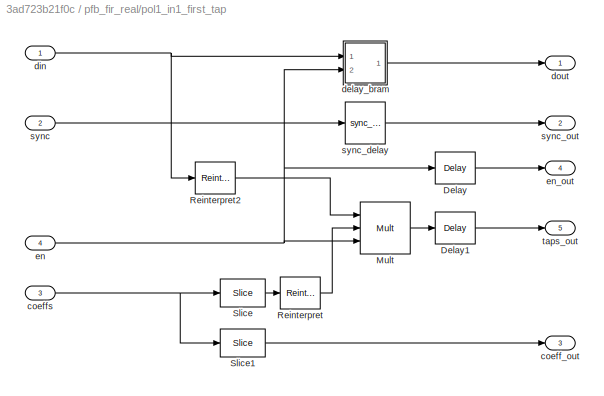
BLOCK [SubSystem] pfb_fir_real/pol1_in1_first_tap
  AncestorBlock = casper_library_pfbs/first_tap_real
  AttributesFormatString = taps=4
  FunctionWithSeparateData = off
  MaskHideContents = off
  MinAlgLoopOccurrences = off
  Opaque = off
  Ports = [4, 5]
  PropExecContextOutsideSubsystem = off
  RTWSystemCode = Auto
  RequestExecContextInheritance = off
  UserDataPersistent = on
BLOCK [Reference] pfb_fir_real/pol1_in1_first_tap/Delay  REF=xbsIndex_r4/Delay
  Ports = [1, 1]
  SourceBlock = xbsIndex_r4/Delay
  SourceType = Xilinx Delay Block
  block_type = delay
  dbl_ovrd = off
  en = off
  has_advanced_control = 0
  infoedit = Hardware notes: A delay line is a chain, each link of which is an SRL16 followed by a flip-flop.
  infoeditControl = Selection of Reset will increase slice count due to use of real FFs and instead of SRLs
  latency = 8
  reg_retiming = off
  rst = off
  sg_icon_stat = 40,32,1,1,white,blue,0,e47f993a,right,,[ ],[ ]
  sggui_pos = 53,14,416,361
  xl_area = [0,0,0,0,0,0,0]
  xl_use_area = off
BLOCK [Reference] pfb_fir_real/pol1_in1_first_tap/Delay1  REF=xbsIndex_r4/Delay
  Ports = [1, 1]
  SourceBlock = xbsIndex_r4/Delay
  SourceType = Xilinx Delay Block
  block_type = delay
  dbl_ovrd = off
  en = off
  has_advanced_control = 0
  infoedit = Hardware notes: A delay line is a chain, each link of which is an SRL16 followed by a flip-flop.
  infoeditControl = Selection of Reset will increase slice count due to use of real FFs and instead of SRLs
  latency = 6
  reg_retiming = off
  rst = off
  sg_icon_stat = 40,32,1,1,white,blue,0,aa5bc30d,right,,[ ],[ ]
  sggui_pos = 53,14,416,361
  xl_area = [0,0,0,0,0,0,0]
  xl_use_area = off
BLOCK [Reference] pfb_fir_real/pol1_in1_first_tap/Mult  REF=xbsIndex_r4/Mult
  Ports = [3, 1]
  SourceBlock = xbsIndex_r4/Mult
  SourceType = Xilinx Multiplier Block
  arith_type = Signed  (2's comp)
  bin_pt = 2
  block_type = mult
  block_version = 9.1.01
  dbl_ovrd = off
  en = on
  has_advanced_control = 0
  infoedit = Hardware notes: To check for the optimum internal pipeline stages of the dedicated multiplier you must select 'Test for optimum pipelining'.<br><br>Optimization Goal: For implementation into device fabric (LUTs), the Speed or Area optimization will take effect only if it's supported by IP for the particular device family. Otherwise, the results will be identical regardless of the selection.  <repeated x4 — deduplicated; at blocks: Mult>
  latency = mult_latency
  n_bits = 8
  opt = Speed
  optimum_pipeline = off
  overflow = Wrap
  pipeline = on
  placement_style = Rectangular shape
  precision = Full
  quantization = Truncate
  sg_icon_stat = 50,52,3,1,white,blue,0,1da91f14,right,,[ ],[ ]
  sg_mask_display = fprintf('','COMMENT: begin icon graphics');\npatch([0 50 50 0 0 ],[0 0 52 52 0 ],[0.77 0.82 0.91 ]);\nplot([0 50 50 0 0 ],[0 0 52 52 0 ]);\npatch([9.425 19.54 26.54 33.54 40.54 26.54 16.425 9.425 ],[33.77 33.77 40.77 33.77 40.77 40.77 40.77 33.77 ],[1 1 1 ]);\npatch([16.425 26.54 19.54 9.425 16.425 ],[26.77 26.77 33.77 33.77 26.77 ],[0.931 0.946 0.973 ]);\npatch([9.425 19.54 26.54 16.425 9.425 ],[19.77...<+559ch>  <repeated x4 — deduplicated; at blocks: Mult>
  sggui_pos = 53,14,416,660
  use_behavioral_HDL = off
  use_embedded = on
  use_rpm = on
  xl_area = [0, 0, 0, 0, 0, 0, 0]
  xl_use_area = off
BLOCK [Reference] pfb_fir_real/pol1_in1_first_tap/Reinterpret  REF=xbsIndex_r4/Reinterpret
  Ports = [1, 1]
  SourceBlock = xbsIndex_r4/Reinterpret
  SourceType = Xilinx Type Reinterpreter Block
  arith_type = Signed  (2's comp)
  bin_pt = CoeffBitWidth - 1
  block_type = reinterpret
  block_version = 9.1.01
  force_arith_type = on
  force_bin_pt = on
  has_advanced_control = 0
  sg_icon_stat = 40,32,1,1,white,blue,0,6b04d0b0,right,,[ ],[ ]
  sggui_pos = 73,34,364,363
BLOCK [Reference] pfb_fir_real/pol1_in1_first_tap/Reinterpret2  REF=xbsIndex_r4/Reinterpret
  Ports = [1, 1]
  SourceBlock = xbsIndex_r4/Reinterpret
  SourceType = Xilinx Type Reinterpreter Block
  arith_type = Signed  (2's comp)
  bin_pt = BitWidthIn - 1
  block_type = reinterpret
  block_version = 9.1.01
  force_arith_type = on
  force_bin_pt = on
  has_advanced_control = 0
  sg_icon_stat = 40,32,1,1,white,blue,0,6b04d0b0,right,,[ ],[ ]
  sggui_pos = 73,34,364,363
BLOCK [Reference] pfb_fir_real/pol1_in1_first_tap/Slice  REF=xbsIndex_r4/Slice
  Ports = [1, 1]
  SourceBlock = xbsIndex_r4/Slice
  SourceType = Xilinx Bit Slice Extractor Block
  base0 = LSB of Input
  base1 = MSB of Input
  bit0 = 0
  bit1 = 0
  block_type = slice
  block_version = 9.1.01
  boolean_output = off
  dbl_ovrd = off
  has_advanced_control = 0
  infoedit = Extracts a given range of bits from each input sample and presents it at the output.  The output type is ordinarily unsigned with binary point at zero, but can be Boolean when the slice is one bit wide.<P><P>Hardware notes: In hardware this block costs nothing.  <repeated x6 — deduplicated; at blocks: Slice, Slice1>
  mode = Lower Bit Location + Width
  nbits = CoeffBitWidth
  sg_icon_stat = 45,28,1,1,white,blue,0,1fd851a7,right,,[ ],[ ]
  sg_mask_display = fprintf('','COMMENT: begin icon graphics');\npatch([0 45 45 0 0 ],[0 0 28 28 0 ],[0.77 0.82 0.91 ]);\nplot([0 45 45 0 0 ],[0 0 28 28 0 ]);\npatch([13.1 18.88 22.88 26.88 30.88 22.88 17.1 13.1 ],[18.44 18.44 22.44 18.44 22.44 22.44 22.44 18.44 ],[1 1 1 ]);\npatch([17.1 22.88 18.88 13.1 17.1 ],[14.44 14.44 18.44 18.44 14.44 ],[0.931 0.946 0.973 ]);\npatch([13.1 18.88 22.88 17.1 13.1 ],[10.44 10.44 14.44 ...<+304ch>  <repeated x6 — deduplicated; at blocks: Slice, Slice1>
  sggui_pos = 63,24,543,459
BLOCK [Reference] pfb_fir_real/pol1_in1_first_tap/Slice1  REF=xbsIndex_r4/Slice
  Ports = [1, 1]
  SourceBlock = xbsIndex_r4/Slice
  SourceType = Xilinx Bit Slice Extractor Block
  base0 = LSB of Input
  base1 = MSB of Input
  bit0 = CoeffBitWidth
  bit1 = 0
  block_type = slice
  block_version = 9.1.01
  boolean_output = off
  dbl_ovrd = off
  has_advanced_control = 0
  mode = Two Bit Locations
  nbits = CoeffBitWidth * (TotalTaps - 1)
  sg_icon_stat = 45,28,1,1,white,blue,0,1fd851a7,right,,[ ],[ ]
  sggui_pos = 63,24,543,459
BLOCK [Outport] pfb_fir_real/pol1_in1_first_tap/coeff_out
  IconDisplay = Port number
  Port = 3
BLOCK [Inport] pfb_fir_real/pol1_in1_first_tap/coeffs
  IconDisplay = Port number
  Port = 3
BLOCK [SubSystem] pfb_fir_real/pol1_in1_first_tap/delay_bram
  AncestorBlock = casper_library_delays/delay_bram
  FunctionWithSeparateData = off
  MaskHideContents = off
  MinAlgLoopOccurrences = off
  Opaque = off
  Ports = [2, 1]
  PropExecContextOutsideSubsystem = off
  RTWSystemCode = Auto
  RequestExecContextInheritance = off
  UserDataPersistent = on
BLOCK [Reference] pfb_fir_real/pol1_in1_first_tap/delay_bram/Delay  REF=xbsIndex_r4/Delay
  Ports = [1, 1]
  SourceBlock = xbsIndex_r4/Delay
  SourceType = Xilinx Delay Block
  block_type = delay
  dbl_ovrd = off
  en = off
  has_advanced_control = 0
  infoedit = Hardware notes: A delay line is a chain, each link of which is an SRL16 followed by a flip-flop.
  infoeditControl = Selection of Reset will increase slice count due to use of real FFs and instead of SRLs
  latency = 6
  reg_retiming = off
  rst = off
  sg_icon_stat = 50,46,1,1,white,blue,0,aa5bc30d,right,,[ ],[ ]
  sg_mask_display = fprintf('','COMMENT: begin icon graphics');\npatch([0 50 50 0 0 ],[0 0 46 46 0 ],[0.77 0.82 0.91 ]);\nplot([0 50 50 0 0 ],[0 0 46 46 0 ]);\npatch([11.65 20.32 26.32 32.32 38.32 26.32 17.65 11.65 ],[29.66 29.66 35.66 29.66 35.66 35.66 35.66 29.66 ],[1 1 1 ]);\npatch([17.65 26.32 20.32 11.65 17.65 ],[23.66 23.66 29.66 29.66 23.66 ],[0.931 0.946 0.973 ]);\npatch([11.65 20.32 26.32 17.65 11.65 ],[17.66 17....<+320ch>
  sggui_pos = 73,34,416,361
  xl_area = [0,0,0,0,0,0,0]
  xl_use_area = off
BLOCK [Reference] pfb_fir_real/pol1_in1_first_tap/delay_bram/counter  REF=xbsIndex_r4/Counter
  Ports = [1, 1]
  SourceBlock = xbsIndex_r4/Counter
  SourceType = Xilinx Counter Block
  arith_type = Unsigned
  bin_pt = 0
  block_type = counter
  cnt_by_val = 1
  cnt_to = DelayLen - bram_latency - 1
  cnt_type = Count Limited
  dbl_ovrd = off
  en = on
  explicit_period = on
  has_advanced_control = 0
  implementation = Fabric
  infoedit = Hardware notes: Free running counters are the least expensive in hardware.  A count limited counter is implemented by combining a counter with a comparator.
  load_pin = off
  n_bits = 6
  operation = Up
  period = 1
  rst = off
  sg_icon_stat = 65,48,1,1,white,blue,0,6de68f4a,right,,[ ],[ ]
  sg_mask_display = fprintf('','COMMENT: begin icon graphics');\npatch([0 65 65 0 0 ],[0 0 48 48 0 ],[0.77 0.82 0.91 ]);\nplot([0 65 65 0 0 ],[0 0 48 48 0 ]);\npatch([18.65 27.32 33.32 39.32 45.32 33.32 24.65 18.65 ],[30.66 30.66 36.66 30.66 36.66 36.66 36.66 30.66 ],[1 1 1 ]);\npatch([24.65 33.32 27.32 18.65 24.65 ],[24.66 24.66 30.66 30.66 24.66 ],[0.931 0.946 0.973 ]);\npatch([18.65 27.32 33.32 24.65 18.65 ],[18.66 18....<+388ch>
  sggui_pos = 53,14,416,716
  start_count = 0
  use_behavioral_HDL = on
  use_rpm = off
  xl_area = [0,0,0,0,0,0,0]
  xl_use_area = off
BLOCK [Inport] pfb_fir_real/pol1_in1_first_tap/delay_bram/din
  IconDisplay = Port number
BLOCK [Outport] pfb_fir_real/pol1_in1_first_tap/delay_bram/dout
  IconDisplay = Port number
BLOCK [Reference] pfb_fir_real/pol1_in1_first_tap/delay_bram/ram  REF=xbsIndex_r4/Single Port RAM
  Ports = [3, 1]
  SourceBlock = xbsIndex_r4/Single Port RAM
  SourceType = Xilinx Single Port Random Access Memory Block
  block_type = spram
  dbl_ovrd = off
  depth = 64
  distributed_mem = Block RAM
  en = off
  has_advanced_control = 0
  initVector = 0
  init_reg = 0
  latency = bram_latency
  optimize = Area
  rst = off
  sg_icon_stat = 65,116,3,1,white,blue,0,558c5cad,right,,[ ],[ ]
  sg_mask_display = fprintf('','COMMENT: begin icon graphics');\npatch([0 65 65 0 0 ],[0 0 116 116 0 ],[0.77 0.82 0.91 ]);\nplot([0 65 65 0 0 ],[0 0 116 116 0 ]);\npatch([11.975 24.98 33.98 42.98 51.98 33.98 20.975 11.975 ],[67.99 67.99 76.99 67.99 76.99 76.99 76.99 67.99 ],[1 1 1 ]);\npatch([20.975 33.98 24.98 11.975 20.975 ],[58.99 58.99 67.99 67.99 58.99 ],[0.931 0.946 0.973 ]);\npatch([11.975 24.98 33.98 20.975 11.975...<+468ch>  <repeated x3 — deduplicated; at blocks: ram>
  sggui_pos = 53,14,425,369
  write_mode = Read Before Write
  xl_area = [0,0,0,0,0,0,0]
  xl_use_area = off
BLOCK [Inport] pfb_fir_real/pol1_in1_first_tap/delay_bram/we
  IconDisplay = Port number
  Port = 2
BLOCK [Inport] pfb_fir_real/pol1_in1_first_tap/din
  IconDisplay = Port number
BLOCK [Outport] pfb_fir_real/pol1_in1_first_tap/dout
  IconDisplay = Port number
BLOCK [Inport] pfb_fir_real/pol1_in1_first_tap/en
  IconDisplay = Port number
  Port = 4
BLOCK [Outport] pfb_fir_real/pol1_in1_first_tap/en_out 
  IconDisplay = Port number
  Port = 4
BLOCK [Inport] pfb_fir_real/pol1_in1_first_tap/sync
  IconDisplay = Port number
  Port = 2
BLOCK [Reference] pfb_fir_real/pol1_in1_first_tap/sync_delay  REF=casper_library_delays/sync_delay  (lib defined in mdl_259a08a3fac5, mdl_65009615caaa, +5 more)
  DelayLen = 2^(PFBSize-n_inputs)*4
  Ports = [1, 1]
  SourceBlock = casper_library_delays/sync_delay
  SourceType = sync_delay
BLOCK [Outport] pfb_fir_real/pol1_in1_first_tap/sync_out
  IconDisplay = Port number
  Port = 2
BLOCK [Outport] pfb_fir_real/pol1_in1_first_tap/taps_out
  IconDisplay = Port number
  Port = 5
BLOCK [SubSystem] pfb_fir_real/pol1_in1_last_tap
  AncestorBlock = casper_library_pfbs/last_tap_real
  FunctionWithSeparateData = off
  MaskHideContents = off
  MinAlgLoopOccurrences = off
  Opaque = off
  Ports = [4, 3]
  PropExecContextOutsideSubsystem = off
  RTWSystemCode = Auto
  RequestExecContextInheritance = off
  UserDataPersistent = on
BLOCK [Reference] pfb_fir_real/pol1_in1_last_tap/Delay  REF=xbsIndex_r4/Delay
  Ports = [1, 1]
  SourceBlock = xbsIndex_r4/Delay
  SourceType = Xilinx Delay Block
  block_type = delay
  block_version = 9.1.01
  dbl_ovrd = off
  en = off
  has_advanced_control = 0
  infoedit = Hardware notes: A delay line is a chain, each link of which is an SRL16 followed by a flip-flop.
  infoeditControl = Selection of Reset will increase slice count due to use of real FFs and instead of SRLs
  latency = mult_latency
  reg_retiming = on
  rst = off
  sg_icon_stat = 45,46,1,1,white,blue,0,85ce9542,right,,[ ],[ ]
  sg_mask_display = fprintf('','COMMENT: begin icon graphics');\npatch([0 45 45 0 0 ],[0 0 46 46 0 ],[0.77 0.82 0.91 ]);\nplot([0 45 45 0 0 ],[0 0 46 46 0 ]);\npatch([8.65 17.32 23.32 29.32 35.32 23.32 14.65 8.65 ],[29.66 29.66 35.66 29.66 35.66 35.66 35.66 29.66 ],[1 1 1 ]);\npatch([14.65 23.32 17.32 8.65 14.65 ],[23.66 23.66 29.66 29.66 23.66 ],[0.931 0.946 0.973 ]);\npatch([8.65 17.32 23.32 14.65 8.65 ],[17.66 17.66 23...<+314ch>  <repeated x4 — deduplicated; at blocks: Delay, Delay2, Delay3, Delay4>
  sggui_pos = 53,14,416,361
  xl_area = [0, 0, 0, 0, 0, 0, 0]
  xl_use_area = off
BLOCK [Reference] pfb_fir_real/pol1_in1_last_tap/Delay1  REF=xbsIndex_r4/Delay
  Ports = [1, 1]
  SourceBlock = xbsIndex_r4/Delay
  SourceType = Xilinx Delay Block
  block_type = delay
  dbl_ovrd = off
  en = off
  has_advanced_control = 0
  infoedit = Hardware notes: A delay line is a chain, each link of which is an SRL16 followed by a flip-flop.
  infoeditControl = Selection of Reset will increase slice count due to use of real FFs and instead of SRLs
  latency = 2
  reg_retiming = off
  rst = off
  sg_icon_stat = 40,42,1,1,white,blue,0,85ce9542,right,,[ ],[ ]
  sg_mask_display = fprintf('','COMMENT: begin icon graphics');\npatch([0 40 40 0 0 ],[0 0 42 42 0 ],[0.77 0.82 0.91 ]);\nplot([0 40 40 0 0 ],[0 0 42 42 0 ]);\npatch([8.875 16.1 21.1 26.1 31.1 21.1 13.875 8.875 ],[26.55 26.55 31.55 26.55 31.55 31.55 31.55 26.55 ],[1 1 1 ]);\npatch([13.875 21.1 16.1 8.875 13.875 ],[21.55 21.55 26.55 26.55 21.55 ],[0.931 0.946 0.973 ]);\npatch([8.875 16.1 21.1 13.875 8.875 ],[16.55 16.55 21...<+313ch>
  sggui_pos = 53,14,416,361
  xl_area = [0,0,0,0,0,0,0]
  xl_use_area = off
BLOCK [Reference] pfb_fir_real/pol1_in1_last_tap/Delay2  REF=xbsIndex_r4/Delay
  Ports = [1, 1]
  SourceBlock = xbsIndex_r4/Delay
  SourceType = Xilinx Delay Block
  block_type = delay
  block_version = 9.1.01
  dbl_ovrd = off
  en = off
  has_advanced_control = 0
  infoedit = Hardware notes: A delay line is a chain, each link of which is an SRL16 followed by a flip-flop.
  infoeditControl = Selection of Reset will increase slice count due to use of real FFs and instead of SRLs
  latency = 6
  reg_retiming = on
  rst = off
  sg_icon_stat = 45,46,1,1,white,blue,0,aa5bc30d,right,,[ ],[ ]
  sggui_pos = 53,14,416,361
  xl_area = [0, 0, 0, 0, 0, 0, 0]
  xl_use_area = off
BLOCK [Reference] pfb_fir_real/pol1_in1_last_tap/Delay3  REF=xbsIndex_r4/Delay
  Ports = [1, 1]
  SourceBlock = xbsIndex_r4/Delay
  SourceType = Xilinx Delay Block
  block_type = delay
  block_version = 9.1.01
  dbl_ovrd = off
  en = off
  has_advanced_control = 0
  infoedit = Hardware notes: A delay line is a chain, each link of which is an SRL16 followed by a flip-flop.
  infoeditControl = Selection of Reset will increase slice count due to use of real FFs and instead of SRLs
  latency = 6
  reg_retiming = on
  rst = off
  sg_icon_stat = 45,46,1,1,white,blue,0,aa5bc30d,right,,[ ],[ ]
  sggui_pos = 53,14,416,361
  xl_area = [0, 0, 0, 0, 0, 0, 0]
  xl_use_area = off
BLOCK [Reference] pfb_fir_real/pol1_in1_last_tap/Delay4  REF=xbsIndex_r4/Delay
  Ports = [1, 1]
  SourceBlock = xbsIndex_r4/Delay
  SourceType = Xilinx Delay Block
  block_type = delay
  block_version = 9.1.01
  dbl_ovrd = off
  en = off
  has_advanced_control = 0
  infoedit = Hardware notes: A delay line is a chain, each link of which is an SRL16 followed by a flip-flop.
  infoeditControl = Selection of Reset will increase slice count due to use of real FFs and instead of SRLs
  latency = 6
  reg_retiming = on
  rst = off
  sg_icon_stat = 45,46,1,1,white,blue,0,aa5bc30d,right,,[ ],[ ]
  sggui_pos = 53,14,416,361
  xl_area = [0, 0, 0, 0, 0, 0, 0]
  xl_use_area = off
BLOCK [Reference] pfb_fir_real/pol1_in1_last_tap/Mult  REF=xbsIndex_r4/Mult
  Ports = [3, 1]
  SourceBlock = xbsIndex_r4/Mult
  SourceType = Xilinx Multiplier Block
  arith_type = Signed  (2's comp)
  bin_pt = 2
  block_type = mult
  block_version = 9.1.01
  dbl_ovrd = off
  en = on
  has_advanced_control = 0
  latency = mult_latency
  n_bits = 8
  opt = Speed
  optimum_pipeline = off
  overflow = Wrap
  pipeline = on
  placement_style = Rectangular shape
  precision = Full
  quantization = Truncate
  sg_icon_stat = 50,52,3,1,white,blue,0,1da91f14,right,,[ ],[ ]
  sggui_pos = 53,14,416,660
  use_behavioral_HDL = off
  use_embedded = on
  use_rpm = on
  xl_area = [0, 0, 0, 0, 0, 0, 0]
  xl_use_area = off
BLOCK [Reference] pfb_fir_real/pol1_in1_last_tap/Reinterpret  REF=xbsIndex_r4/Reinterpret
  Ports = [1, 1]
  SourceBlock = xbsIndex_r4/Reinterpret
  SourceType = Xilinx Type Reinterpreter Block
  arith_type = Signed  (2's comp)
  bin_pt = CoeffBitWidth - 1
  block_type = reinterpret
  block_version = 9.1.01
  force_arith_type = on
  force_bin_pt = on
  has_advanced_control = 0
  sg_icon_stat = 40,32,1,1,white,blue,0,6b04d0b0,right,,[ ],[ ]
  sggui_pos = -1,-1,-1,-1
BLOCK [Reference] pfb_fir_real/pol1_in1_last_tap/Reinterpret1  REF=xbsIndex_r4/Reinterpret
  Ports = [1, 1]
  SourceBlock = xbsIndex_r4/Reinterpret
  SourceType = Xilinx Type Reinterpreter Block
  arith_type = Signed  (2's comp)
  bin_pt = BitWidthIn - 1
  block_type = reinterpret
  block_version = 9.1.01
  force_arith_type = on
  force_bin_pt = on
  has_advanced_control = 0
  sg_icon_stat = 40,32,1,1,white,blue,0,6b04d0b0,right,,[ ],[ ]
  sggui_pos = -1,-1,-1,-1
BLOCK [Inport] pfb_fir_real/pol1_in1_last_tap/coeff
  IconDisplay = Port number
  Port = 3
BLOCK [Inport] pfb_fir_real/pol1_in1_last_tap/din
  IconDisplay = Port number
BLOCK [Inport] pfb_fir_real/pol1_in1_last_tap/en
  IconDisplay = Port number
  Port = 4
BLOCK [Outport] pfb_fir_real/pol1_in1_last_tap/en_out
  IconDisplay = Port number
  Port = 3
BLOCK [Inport] pfb_fir_real/pol1_in1_last_tap/sync
  IconDisplay = Port number
  Port = 2
BLOCK [Outport] pfb_fir_real/pol1_in1_last_tap/sync_out
  IconDisplay = Port number
  Port = 2
BLOCK [Outport] pfb_fir_real/pol1_in1_last_tap/tap_out
  IconDisplay = Port number
BLOCK [SubSystem] pfb_fir_real/pol1_in1_tap2
  AncestorBlock = casper_library_pfbs/tap_real
  FunctionWithSeparateData = off
  MaskHideContents = off
  MinAlgLoopOccurrences = off
  Opaque = off
  Ports = [4, 5]
  PropExecContextOutsideSubsystem = off
  RTWSystemCode = Auto
  RequestExecContextInheritance = off
BLOCK [Reference] pfb_fir_real/pol1_in1_tap2/Delay  REF=xbsIndex_r4/Delay
  Ports = [1, 1]
  SourceBlock = xbsIndex_r4/Delay
  SourceType = Xilinx Delay Block
  block_type = delay
  dbl_ovrd = off
  en = off
  has_advanced_control = 0
  infoedit = Hardware notes: A delay line is a chain, each link of which is an SRL16 followed by a flip-flop.
  infoeditControl = Selection of Reset will increase slice count due to use of real FFs and instead of SRLs
  latency = 8
  reg_retiming = off
  rst = off
  sg_icon_stat = 35,32,1,1,white,blue,0,e47f993a,right,,[ ],[ ]
  sg_mask_display = fprintf('','COMMENT: begin icon graphics');\npatch([0 35 35 0 0 ],[0 0 32 32 0 ],[0.77 0.82 0.91 ]);\nplot([0 35 35 0 0 ],[0 0 32 32 0 ]);\npatch([8.1 13.88 17.88 21.88 25.88 17.88 12.1 8.1 ],[20.44 20.44 24.44 20.44 24.44 24.44 24.44 20.44 ],[1 1 1 ]);\npatch([12.1 17.88 13.88 8.1 12.1 ],[16.44 16.44 20.44 20.44 16.44 ],[0.931 0.946 0.973 ]);\npatch([8.1 13.88 17.88 12.1 8.1 ],[12.44 12.44 16.44 16.44...<+298ch>
  sggui_pos = 53,14,416,361
  xl_area = [0,0,0,0,0,0,0]
  xl_use_area = off
BLOCK [Reference] pfb_fir_real/pol1_in1_tap2/Delay1  REF=xbsIndex_r4/Delay
  Ports = [1, 1]
  SourceBlock = xbsIndex_r4/Delay
  SourceType = Xilinx Delay Block
  block_type = delay
  dbl_ovrd = off
  en = off
  has_advanced_control = 0
  infoedit = Hardware notes: A delay line is a chain, each link of which is an SRL16 followed by a flip-flop.
  infoeditControl = Selection of Reset will increase slice count due to use of real FFs and instead of SRLs
  latency = 6
  reg_retiming = off
  rst = off
  sg_icon_stat = 35,32,1,1,white,blue,0,aa5bc30d,right,,[ ],[ ]
  sg_mask_display = fprintf('','COMMENT: begin icon graphics');\npatch([0 35 35 0 0 ],[0 0 32 32 0 ],[0.77 0.82 0.91 ]);\nplot([0 35 35 0 0 ],[0 0 32 32 0 ]);\npatch([8.1 13.88 17.88 21.88 25.88 17.88 12.1 8.1 ],[20.44 20.44 24.44 20.44 24.44 24.44 24.44 20.44 ],[1 1 1 ]);\npatch([12.1 17.88 13.88 8.1 12.1 ],[16.44 16.44 20.44 20.44 16.44 ],[0.931 0.946 0.973 ]);\npatch([8.1 13.88 17.88 12.1 8.1 ],[12.44 12.44 16.44 16.44...<+298ch>
  sggui_pos = 53,14,416,361
  xl_area = [0,0,0,0,0,0,0]
  xl_use_area = off
BLOCK [Reference] pfb_fir_real/pol1_in1_tap2/Mult  REF=xbsIndex_r4/Mult
  Ports = [3, 1]
  SourceBlock = xbsIndex_r4/Mult
  SourceType = Xilinx Multiplier Block
  arith_type = Signed  (2's comp)
  bin_pt = 2
  block_type = mult
  block_version = 9.1.01
  dbl_ovrd = off
  en = on
  has_advanced_control = 0
  latency = mult_latency
  n_bits = 8
  opt = Speed
  optimum_pipeline = off
  overflow = Wrap
  pipeline = on
  placement_style = Rectangular shape
  precision = Full
  quantization = Truncate
  sg_icon_stat = 50,52,3,1,white,blue,0,1da91f14,right,,[ ],[ ]
  sggui_pos = 53,14,416,660
  use_behavioral_HDL = off
  use_embedded = on
  use_rpm = on
  xl_area = [0, 0, 0, 0, 0, 0, 0]
  xl_use_area = off
BLOCK [Reference] pfb_fir_real/pol1_in1_tap2/Reinterpret  REF=xbsIndex_r4/Reinterpret
  Ports = [1, 1]
  SourceBlock = xbsIndex_r4/Reinterpret
  SourceType = Xilinx Type Reinterpreter Block
  arith_type = Signed  (2's comp)
  bin_pt = coeff_frac_width
  block_type = reinterpret
  block_version = 9.1.01
  force_arith_type = on
  force_bin_pt = on
  has_advanced_control = 0
  sg_icon_stat = 40,32,1,1,white,blue,0,6b04d0b0,right,,[ ],[ ]
  sggui_pos = 2094,174,336,370
BLOCK [Reference] pfb_fir_real/pol1_in1_tap2/Reinterpret1  REF=xbsIndex_r4/Reinterpret
  Ports = [1, 1]
  SourceBlock = xbsIndex_r4/Reinterpret
  SourceType = Xilinx Type Reinterpreter Block
  arith_type = Signed  (2's comp)
  bin_pt = data_width - 1
  block_type = reinterpret
  block_version = 9.1.01
  force_arith_type = on
  force_bin_pt = on
  has_advanced_control = 0
  sg_icon_stat = 40,32,1,1,white,blue,0,6b04d0b0,right,,[ ],[ ]
  sggui_pos = 2607,154,336,370
BLOCK [Reference] pfb_fir_real/pol1_in1_tap2/Slice  REF=xbsIndex_r4/Slice
  Ports = [1, 1]
  SourceBlock = xbsIndex_r4/Slice
  SourceType = Xilinx Bit Slice Extractor Block
  base0 = LSB of Input
  base1 = MSB of Input
  bit0 = 0
  bit1 = 0
  block_type = slice
  block_version = 9.1.01
  boolean_output = off
  dbl_ovrd = off
  has_advanced_control = 0
  mode = Lower Bit Location + Width
  nbits = coeff_width
  sg_icon_stat = 45,28,1,1,white,blue,0,1fd851a7,right,,[ ],[ ]
  sggui_pos = 2238,309,533,427
BLOCK [Reference] pfb_fir_real/pol1_in1_tap2/Slice1  REF=xbsIndex_r4/Slice
  Ports = [1, 1]
  SourceBlock = xbsIndex_r4/Slice
  SourceType = Xilinx Bit Slice Extractor Block
  base0 = LSB of Input
  base1 = MSB of Input
  bit0 = coeff_width
  bit1 = 0
  block_type = slice
  block_version = 9.1.01
  boolean_output = off
  dbl_ovrd = off
  has_advanced_control = 0
  mode = Two Bit Locations
  nbits = 0
  sg_icon_stat = 45,28,1,1,white,blue,0,1fd851a7,right,,[ ],[ ]
  sggui_pos = 813,123,543,459
BLOCK [Inport] pfb_fir_real/pol1_in1_tap2/coeff
  IconDisplay = Port number
  Port = 3
BLOCK [Outport] pfb_fir_real/pol1_in1_tap2/coeff_out
  IconDisplay = Port number
  Port = 3
BLOCK [SubSystem] pfb_fir_real/pol1_in1_tap2/delay_bram
  AncestorBlock = casper_library_delays/delay_bram
  FunctionWithSeparateData = off
  MaskHideContents = off
  MinAlgLoopOccurrences = off
  Opaque = off
  Ports = [2, 1]
  PropExecContextOutsideSubsystem = off
  RTWSystemCode = Auto
  RequestExecContextInheritance = off
  UserDataPersistent = on
BLOCK [Reference] pfb_fir_real/pol1_in1_tap2/delay_bram/Delay  REF=xbsIndex_r4/Delay
  Ports = [1, 1]
  SourceBlock = xbsIndex_r4/Delay
  SourceType = Xilinx Delay Block
  block_type = delay
  dbl_ovrd = off
  en = off
  has_advanced_control = 0
  infoedit = Hardware notes: A delay line is a chain, each link of which is an SRL16 followed by a flip-flop.
  infoeditControl = Selection of Reset will increase slice count due to use of real FFs and instead of SRLs
  latency = 6
  reg_retiming = off
  rst = off
  sg_icon_stat = 50,42,1,1,white,blue,0,aa5bc30d,right,,[ ],[ ]
  sg_mask_display = fprintf('','COMMENT: begin icon graphics');\npatch([0 50 50 0 0 ],[0 0 42 42 0 ],[0.77 0.82 0.91 ]);\nplot([0 50 50 0 0 ],[0 0 42 42 0 ]);\npatch([11.65 20.32 26.32 32.32 38.32 26.32 17.65 11.65 ],[27.66 27.66 33.66 27.66 33.66 33.66 33.66 27.66 ],[1 1 1 ]);\npatch([17.65 26.32 20.32 11.65 17.65 ],[21.66 21.66 27.66 27.66 21.66 ],[0.931 0.946 0.973 ]);\npatch([11.65 20.32 26.32 17.65 11.65 ],[15.66 15....<+316ch>
  sggui_pos = 73,34,416,361
  xl_area = [0,0,0,0,0,0,0]
  xl_use_area = off
BLOCK [Reference] pfb_fir_real/pol1_in1_tap2/delay_bram/counter  REF=xbsIndex_r4/Counter
  Ports = [1, 1]
  SourceBlock = xbsIndex_r4/Counter
  SourceType = Xilinx Counter Block
  arith_type = Unsigned
  bin_pt = 0
  block_type = counter
  cnt_by_val = 1
  cnt_to = DelayLen - bram_latency - 1
  cnt_type = Count Limited
  dbl_ovrd = off
  en = on
  explicit_period = on
  has_advanced_control = 0
  implementation = Fabric
  infoedit = Hardware notes: Free running counters are the least expensive in hardware.  A count limited counter is implemented by combining a counter with a comparator.
  load_pin = off
  n_bits = 6
  operation = Up
  period = 1
  rst = off
  sg_icon_stat = 55,32,1,1,white,blue,0,6de68f4a,right,,[ ],[ ]
  sg_mask_display = fprintf('','COMMENT: begin icon graphics');\npatch([0 55 55 0 0 ],[0 0 32 32 0 ],[0.77 0.82 0.91 ]);\nplot([0 55 55 0 0 ],[0 0 32 32 0 ]);\npatch([18.1 23.88 27.88 31.88 35.88 27.88 22.1 18.1 ],[20.44 20.44 24.44 20.44 24.44 24.44 24.44 20.44 ],[1 1 1 ]);\npatch([22.1 27.88 23.88 18.1 22.1 ],[16.44 16.44 20.44 20.44 16.44 ],[0.931 0.946 0.973 ]);\npatch([18.1 23.88 27.88 22.1 18.1 ],[12.44 12.44 16.44 ...<+372ch>
  sggui_pos = 53,14,416,716
  start_count = 0
  use_behavioral_HDL = on
  use_rpm = off
  xl_area = [0,0,0,0,0,0,0]
  xl_use_area = off
BLOCK [Inport] pfb_fir_real/pol1_in1_tap2/delay_bram/din
  IconDisplay = Port number
BLOCK [Outport] pfb_fir_real/pol1_in1_tap2/delay_bram/dout
  IconDisplay = Port number
BLOCK [Inport] pfb_fir_real/pol1_in1_tap2/delay_bram/en
  IconDisplay = Port number
  Port = 2
BLOCK [Reference] pfb_fir_real/pol1_in1_tap2/delay_bram/ram  REF=xbsIndex_r4/Single Port RAM
  Ports = [3, 1]
  SourceBlock = xbsIndex_r4/Single Port RAM
  SourceType = Xilinx Single Port Random Access Memory Block
  block_type = spram
  dbl_ovrd = off
  depth = 64
  distributed_mem = Block RAM
  en = off
  has_advanced_control = 0
  initVector = 0
  init_reg = 0
  latency = bram_latency
  optimize = Area
  rst = off
  sg_icon_stat = 65,116,3,1,white,blue,0,558c5cad,right,,[ ],[ ]
  sggui_pos = 53,14,425,369
  write_mode = Read Before Write
  xl_area = [0,0,0,0,0,0,0]
  xl_use_area = off
BLOCK [Inport] pfb_fir_real/pol1_in1_tap2/din
  IconDisplay = Port number
BLOCK [Outport] pfb_fir_real/pol1_in1_tap2/dout
  IconDisplay = Port number
BLOCK [Inport] pfb_fir_real/pol1_in1_tap2/en 
  IconDisplay = Port number
  Port = 4
BLOCK [Outport] pfb_fir_real/pol1_in1_tap2/en_out 
  IconDisplay = Port number
  Port = 4
BLOCK [Inport] pfb_fir_real/pol1_in1_tap2/sync
  IconDisplay = Port number
  Port = 2
BLOCK [Reference] pfb_fir_real/pol1_in1_tap2/sync_delay  REF=casper_library_delays/sync_delay  (lib defined in mdl_259a08a3fac5, mdl_65009615caaa, +5 more)
  DelayLen = delay*4
  Ports = [1, 1]
  SourceBlock = casper_library_delays/sync_delay
  SourceType = sync_delay
BLOCK [Outport] pfb_fir_real/pol1_in1_tap2/sync_out
  IconDisplay = Port number
  Port = 2
BLOCK [Outport] pfb_fir_real/pol1_in1_tap2/taps_out
  IconDisplay = Port number
  Port = 5
BLOCK [SubSystem] pfb_fir_real/pol1_in1_tap3
  AncestorBlock = casper_library_pfbs/tap_real
  FunctionWithSeparateData = off
  MaskHideContents = off
  MinAlgLoopOccurrences = off
  Opaque = off
  Ports = [4, 5]
  PropExecContextOutsideSubsystem = off
  RTWSystemCode = Auto
  RequestExecContextInheritance = off
BLOCK [Reference] pfb_fir_real/pol1_in1_tap3/Delay  REF=xbsIndex_r4/Delay
  Ports = [1, 1]
  SourceBlock = xbsIndex_r4/Delay
  SourceType = Xilinx Delay Block
  block_type = delay
  dbl_ovrd = off
  en = off
  has_advanced_control = 0
  infoedit = Hardware notes: A delay line is a chain, each link of which is an SRL16 followed by a flip-flop.
  infoeditControl = Selection of Reset will increase slice count due to use of real FFs and instead of SRLs
  latency = 8
  reg_retiming = off
  rst = off
  sg_icon_stat = 40,32,1,1,white,blue,0,e47f993a,right,,[ ],[ ]
  sggui_pos = 63,24,416,361
  xl_area = [0,0,0,0,0,0,0]
  xl_use_area = off
BLOCK [Reference] pfb_fir_real/pol1_in1_tap3/Delay1  REF=xbsIndex_r4/Delay
  Ports = [1, 1]
  SourceBlock = xbsIndex_r4/Delay
  SourceType = Xilinx Delay Block
  block_type = delay
  dbl_ovrd = off
  en = off
  has_advanced_control = 0
  infoedit = Hardware notes: A delay line is a chain, each link of which is an SRL16 followed by a flip-flop.
  infoeditControl = Selection of Reset will increase slice count due to use of real FFs and instead of SRLs
  latency = 6
  reg_retiming = off
  rst = off
  sg_icon_stat = 40,32,1,1,white,blue,0,aa5bc30d,right,,[ ],[ ]
  sggui_pos = 53,14,416,361
  xl_area = [0,0,0,0,0,0,0]
  xl_use_area = off
BLOCK [Reference] pfb_fir_real/pol1_in1_tap3/Mult  REF=xbsIndex_r4/Mult
  Ports = [3, 1]
  SourceBlock = xbsIndex_r4/Mult
  SourceType = Xilinx Multiplier Block
  arith_type = Signed  (2's comp)
  bin_pt = 2
  block_type = mult
  block_version = 9.1.01
  dbl_ovrd = off
  en = on
  has_advanced_control = 0
  latency = mult_latency
  n_bits = 8
  opt = Speed
  optimum_pipeline = off
  overflow = Wrap
  pipeline = on
  placement_style = Rectangular shape
  precision = Full
  quantization = Truncate
  sg_icon_stat = 50,52,3,1,white,blue,0,1da91f14,right,,[ ],[ ]
  sggui_pos = 53,14,416,660
  use_behavioral_HDL = off
  use_embedded = on
  use_rpm = on
  xl_area = [0, 0, 0, 0, 0, 0, 0]
  xl_use_area = off
BLOCK [Reference] pfb_fir_real/pol1_in1_tap3/Reinterpret  REF=xbsIndex_r4/Reinterpret
  Ports = [1, 1]
  SourceBlock = xbsIndex_r4/Reinterpret
  SourceType = Xilinx Type Reinterpreter Block
  arith_type = Signed  (2's comp)
  bin_pt = coeff_frac_width
  block_type = reinterpret
  block_version = 9.1.01
  force_arith_type = on
  force_bin_pt = on
  has_advanced_control = 0
  sg_icon_stat = 40,32,1,1,white,blue,0,6b04d0b0,right,,[ ],[ ]
  sggui_pos = 2094,174,336,370
BLOCK [Reference] pfb_fir_real/pol1_in1_tap3/Reinterpret1  REF=xbsIndex_r4/Reinterpret
  Ports = [1, 1]
  SourceBlock = xbsIndex_r4/Reinterpret
  SourceType = Xilinx Type Reinterpreter Block
  arith_type = Signed  (2's comp)
  bin_pt = data_width - 1
  block_type = reinterpret
  block_version = 9.1.01
  force_arith_type = on
  force_bin_pt = on
  has_advanced_control = 0
  sg_icon_stat = 40,32,1,1,white,blue,0,6b04d0b0,right,,[ ],[ ]
  sggui_pos = 2607,154,336,370
BLOCK [Reference] pfb_fir_real/pol1_in1_tap3/Slice  REF=xbsIndex_r4/Slice
  Ports = [1, 1]
  SourceBlock = xbsIndex_r4/Slice
  SourceType = Xilinx Bit Slice Extractor Block
  base0 = LSB of Input
  base1 = MSB of Input
  bit0 = 0
  bit1 = 0
  block_type = slice
  block_version = 9.1.01
  boolean_output = off
  dbl_ovrd = off
  has_advanced_control = 0
  mode = Lower Bit Location + Width
  nbits = coeff_width
  sg_icon_stat = 45,28,1,1,white,blue,0,1fd851a7,right,,[ ],[ ]
  sggui_pos = 2238,309,533,427
BLOCK [Reference] pfb_fir_real/pol1_in1_tap3/Slice1  REF=xbsIndex_r4/Slice
  Ports = [1, 1]
  SourceBlock = xbsIndex_r4/Slice
  SourceType = Xilinx Bit Slice Extractor Block
  base0 = LSB of Input
  base1 = MSB of Input
  bit0 = coeff_width
  bit1 = 0
  block_type = slice
  block_version = 9.1.01
  boolean_output = off
  dbl_ovrd = off
  has_advanced_control = 0
  mode = Two Bit Locations
  nbits = 0
  sg_icon_stat = 45,28,1,1,white,blue,0,1fd851a7,right,,[ ],[ ]
  sggui_pos = 2019,133,533,427
BLOCK [Inport] pfb_fir_real/pol1_in1_tap3/coeff
  IconDisplay = Port number
  Port = 3
BLOCK [Outport] pfb_fir_real/pol1_in1_tap3/coeff_out
  IconDisplay = Port number
  Port = 3
BLOCK [SubSystem] pfb_fir_real/pol1_in1_tap3/delay_bram
  AncestorBlock = casper_library_delays/delay_bram
  FunctionWithSeparateData = off
  MaskHideContents = off
  MinAlgLoopOccurrences = off
  Opaque = off
  Ports = [2, 1]
  PropExecContextOutsideSubsystem = off
  RTWSystemCode = Auto
  RequestExecContextInheritance = off
  UserDataPersistent = on
BLOCK [Reference] pfb_fir_real/pol1_in1_tap3/delay_bram/Delay  REF=xbsIndex_r4/Delay
  Ports = [1, 1]
  SourceBlock = xbsIndex_r4/Delay
  SourceType = Xilinx Delay Block
  block_type = delay
  dbl_ovrd = off
  en = off
  has_advanced_control = 0
  infoedit = Hardware notes: A delay line is a chain, each link of which is an SRL16 followed by a flip-flop.
  infoeditControl = Selection of Reset will increase slice count due to use of real FFs and instead of SRLs
  latency = 6
  reg_retiming = off
  rst = off
  sg_icon_stat = 45,36,1,1,white,blue,0,aa5bc30d,right,,[ ],[ ]
  sg_mask_display = fprintf('','COMMENT: begin icon graphics');\npatch([0 45 45 0 0 ],[0 0 36 36 0 ],[0.77 0.82 0.91 ]);\nplot([0 45 45 0 0 ],[0 0 36 36 0 ]);\npatch([10.875 18.1 23.1 28.1 33.1 23.1 15.875 10.875 ],[23.55 23.55 28.55 23.55 28.55 28.55 28.55 23.55 ],[1 1 1 ]);\npatch([15.875 23.1 18.1 10.875 15.875 ],[18.55 18.55 23.55 23.55 18.55 ],[0.931 0.946 0.973 ]);\npatch([10.875 18.1 23.1 15.875 10.875 ],[13.55 13....<+315ch>
  sggui_pos = 73,34,416,361
  xl_area = [0,0,0,0,0,0,0]
  xl_use_area = off
BLOCK [Reference] pfb_fir_real/pol1_in1_tap3/delay_bram/counter  REF=xbsIndex_r4/Counter
  Ports = [1, 1]
  SourceBlock = xbsIndex_r4/Counter
  SourceType = Xilinx Counter Block
  arith_type = Unsigned
  bin_pt = 0
  block_type = counter
  cnt_by_val = 1
  cnt_to = DelayLen - bram_latency - 1
  cnt_type = Count Limited
  dbl_ovrd = off
  en = on
  explicit_period = on
  has_advanced_control = 0
  implementation = Fabric
  infoedit = Hardware notes: Free running counters are the least expensive in hardware.  A count limited counter is implemented by combining a counter with a comparator.
  load_pin = off
  n_bits = 6
  operation = Up
  period = 1
  rst = off
  sg_icon_stat = 55,32,1,1,white,blue,0,6de68f4a,right,,[ ],[ ]
  sg_mask_display = fprintf('','COMMENT: begin icon graphics');\npatch([0 55 55 0 0 ],[0 0 32 32 0 ],[0.77 0.82 0.91 ]);\nplot([0 55 55 0 0 ],[0 0 32 32 0 ]);\npatch([18.1 23.88 27.88 31.88 35.88 27.88 22.1 18.1 ],[20.44 20.44 24.44 20.44 24.44 24.44 24.44 20.44 ],[1 1 1 ]);\npatch([22.1 27.88 23.88 18.1 22.1 ],[16.44 16.44 20.44 20.44 16.44 ],[0.931 0.946 0.973 ]);\npatch([18.1 23.88 27.88 22.1 18.1 ],[12.44 12.44 16.44 ...<+372ch>
  sggui_pos = 63,24,416,716
  start_count = 0
  use_behavioral_HDL = on
  use_rpm = off
  xl_area = [0,0,0,0,0,0,0]
  xl_use_area = off
BLOCK [Inport] pfb_fir_real/pol1_in1_tap3/delay_bram/din
  IconDisplay = Port number
BLOCK [Outport] pfb_fir_real/pol1_in1_tap3/delay_bram/dout
  IconDisplay = Port number
BLOCK [Inport] pfb_fir_real/pol1_in1_tap3/delay_bram/en
  IconDisplay = Port number
  Port = 2
BLOCK [Reference] pfb_fir_real/pol1_in1_tap3/delay_bram/ram  REF=xbsIndex_r4/Single Port RAM
  Ports = [3, 1]
  SourceBlock = xbsIndex_r4/Single Port RAM
  SourceType = Xilinx Single Port Random Access Memory Block
  block_type = spram
  dbl_ovrd = off
  depth = 64
  distributed_mem = Block RAM
  en = off
  has_advanced_control = 0
  initVector = 0
  init_reg = 0
  latency = bram_latency
  optimize = Area
  rst = off
  sg_icon_stat = 65,116,3,1,white,blue,0,558c5cad,right,,[ ],[ ]
  sggui_pos = -1,-1,-1,-1
  write_mode = Read Before Write
  xl_area = [0,0,0,0,0,0,0]
  xl_use_area = off
BLOCK [Inport] pfb_fir_real/pol1_in1_tap3/din
  IconDisplay = Port number
BLOCK [Outport] pfb_fir_real/pol1_in1_tap3/dout
  IconDisplay = Port number
BLOCK [Inport] pfb_fir_real/pol1_in1_tap3/en
  IconDisplay = Port number
  Port = 4
BLOCK [Outport] pfb_fir_real/pol1_in1_tap3/en_out
  IconDisplay = Port number
  Port = 4
BLOCK [Inport] pfb_fir_real/pol1_in1_tap3/sync
  IconDisplay = Port number
  Port = 2
BLOCK [Reference] pfb_fir_real/pol1_in1_tap3/sync_delay  REF=casper_library_delays/sync_delay  (lib defined in mdl_259a08a3fac5, mdl_65009615caaa, +5 more)
  DelayLen = delay*4
  Ports = [1, 1]
  SourceBlock = casper_library_delays/sync_delay
  SourceType = sync_delay
BLOCK [Outport] pfb_fir_real/pol1_in1_tap3/sync_out
  IconDisplay = Port number
  Port = 2
BLOCK [Outport] pfb_fir_real/pol1_in1_tap3/taps_out
  IconDisplay = Port number
  Port = 5
BLOCK [Outport] pfb_fir_real/pol1_out1
  IconDisplay = Port number
  Port = 2
BLOCK [Reference] pfb_fir_real/scale_1_1  REF=xbsIndex_r4/Scale
  Ports = [1, 1]
  SourceBlock = xbsIndex_r4/Scale
  SourceType = Xilinx Input Scaler Block
  block_type = scale
  dbl_ovrd = off
  has_advanced_control = 0
  infoedit = Scales input by a power of two by adjusting the binary point position.<br><br>Hardware notes: In hardware this block costs nothing.
  scale_factor = -1
  sg_icon_stat = 30,26,1,1,white,blue,0,315b7d78,right,,[ ],[ ]
  sg_mask_display = fprintf('','COMMENT: begin icon graphics');\npatch([0 30 30 0 0 ],[0 0 26 26 0 ],[0.77 0.82 0.91 ]);\nplot([0 30 30 0 0 ],[0 0 26 26 0 ]);\npatch([8.325 12.66 15.66 18.66 21.66 15.66 11.325 8.325 ],[16.33 16.33 19.33 16.33 19.33 19.33 19.33 16.33 ],[1 1 1 ]);\npatch([11.325 15.66 12.66 8.325 11.325 ],[13.33 13.33 16.33 16.33 13.33 ],[0.931 0.946 0.973 ]);\npatch([8.325 12.66 15.66 11.325 8.325 ],[10.33...<+327ch>
  sggui_pos = 73,34,328,240
BLOCK [Inport] pfb_fir_real/sync
  IconDisplay = Port number
BLOCK [Outport] pfb_fir_real/sync_out
  IconDisplay = Port number
BLOCK [Inport] pfb_fir_real/valid
  IconDisplay = Port number
  Port = 3
ANNOTATION (root): Para dec 4 delay=71 coef_length=64 para dec 8 delay = 135 coef_length=128
LINE Constant1:1 -> Fast Fourier Transform 7.1 :2
LINE Constant5:1 -> Fast Fourier Transform 7.1 :4
LINE Constant6:1 -> Fast Fourier Transform 7.1 :5
LINE Constant:1 -> Register1:2
LINE Convert1:1 -> Fast Fourier Transform 7.1 :1
LINE Convert:1 -> pfb_fir_real:2
LINE Delay1:1 -> pfb_fir_real:3
NET Delay3:1 -> Register1:1, Register1:3
LINE Delay5:1 -> Fast Fourier Transform 7.1 :6
LINE Delay:1 -> pfb_fir_real:1
LINE Fast Fourier Transform 7.1 :1 -> Gateway Out:1
LINE Fast Fourier Transform 7.1 :2 -> Gateway Out4:1
LINE Fast Fourier Transform 7.1 :3 -> Terminator4:1
LINE Fast Fourier Transform 7.1 :4 -> Gateway Out1:1
LINE Fast Fourier Transform 7.1 :5 -> Terminator3:1
LINE Fast Fourier Transform 7.1 :6 -> Terminator2:1
LINE Fast Fourier Transform 7.1 :7 -> Terminator1:1
LINE Fast Fourier Transform 7.1 :8 -> Terminator:1
LINE Fast Fourier Transform 7.1 :9 -> Gateway Out3:1
LINE From Workspace1:1 -> Gateway In1:1
LINE From Workspace:1 -> Gateway In:1
LINE Gateway In1:1 -> Subsystem:2
NET Gateway In:1 -> Gateway Out2:1, Subsystem:1
LINE Gateway Out1:1 -> To Workspace:1
LINE Gateway Out2:1 -> To Workspace2:1
LINE Gateway Out3:1 -> To Workspace3:1
LINE Gateway Out4:1 -> To Workspace4:1
LINE Gateway Out:1 -> To Workspace1:1
LINE Register1:1 -> Fast Fourier Transform 7.1 :3
LINE Reinterpret:1 -> Convert:1
NET Subsystem/Constant1:1 -> Subsystem/FIR Compiler 5.0 :3, Subsystem/Register:2
LINE Subsystem/Delay1:1 -> Subsystem/Logical1:1
LINE Subsystem/Delay:1 -> Subsystem/sync_out:1
LINE Subsystem/FIR Compiler 5.0 :1 -> Subsystem/Reinterpret:1
LINE Subsystem/FIR Compiler 5.0 :2 -> Subsystem/Logical1:2
LINE Subsystem/FIR Compiler 5.0 :3 -> Subsystem/Logical:1
LINE Subsystem/FIR Compiler 5.0 :4 -> Subsystem/Logical:2
LINE Subsystem/Logical1:1 -> Subsystem/Delay:1
LINE Subsystem/Logical:1 -> Subsystem/valid:1
LINE Subsystem/Register:1 -> Subsystem/FIR Compiler 5.0 :2
LINE Subsystem/Reinterpret:1 -> Subsystem/dout:1
LINE Subsystem/din:1 -> Subsystem/FIR Compiler 5.0 :1
NET Subsystem/sync:1 -> Subsystem/Delay1:1, Subsystem/Register:1, Subsystem/Register:3
LINE Subsystem:1 -> Delay:1
LINE Subsystem:2 -> Reinterpret:1
LINE Subsystem:3 -> Delay1:1
LINE pfb_fir_real:1 -> Delay3:1
LINE pfb_fir_real:2 -> Convert1:1
LINE pfb_fir_real:3 -> Delay5:1
note: NET lines group one-source signal fan-out (src -> all destinations, sorted); 1:1 wires keep LINE
